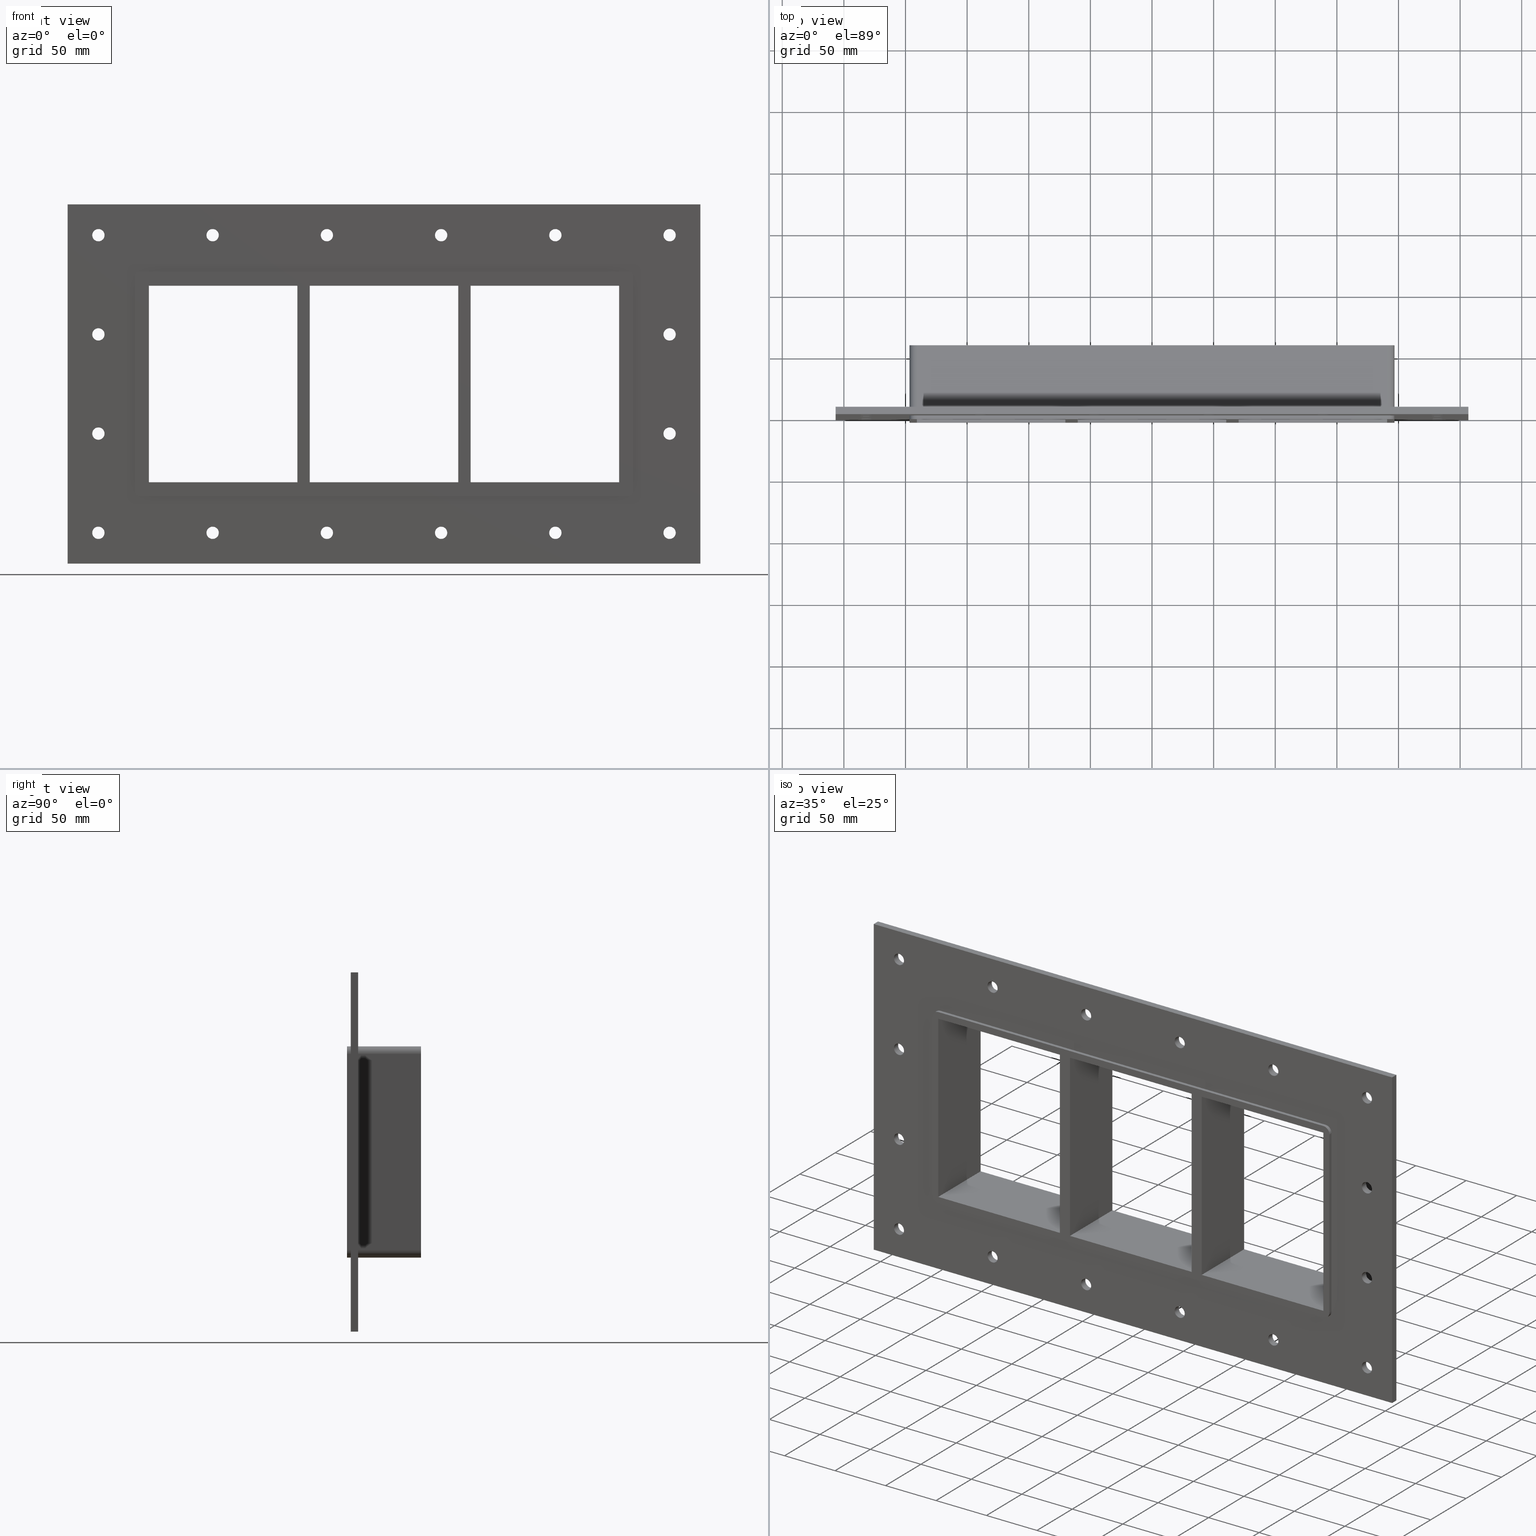
[diagram: canonical four-view strip — front | top / right | iso, engineering-drawing reading convention]
A machine part, canonical four-view strip (front | top / right | iso — engineering-drawing reading convention). The complete STEP part file that produces these views, byte-faithful:
ISO-10303-21;
HEADER;
/****************************************************************
 * Generated by software with PDElib inside                    *
 * PDElib Version v51a, created Wed 11/30/2011                  *
 * ITI Transcendata (http://www.transcendata.com/)              *
 ****************************************************************/
FILE_DESCRIPTION((''),'2;1');
FILE_NAME('N:\\Projects\\Ongoing_Projects\\12403 Transit Designer\\Product-data\\Product Data\\Transit designer Cad Generator\\CreatedFiles\\STEP\\G B EX4X3.stp','2014-12-01T13:18:45',(''),(''),'Autodesk Inventor 2013','Autodesk Inventor 2013','');
FILE_SCHEMA(('AUTOMOTIVE_DESIGN { 1 0 10303 214 1 1 1 1 }'));
ENDSEC;
DATA;
#5=APPLICATION_CONTEXT('automotive design');
#6=APPLICATION_PROTOCOL_DEFINITION('International Standard','automotive_design',2001,#5);
#7=PRODUCT_CONTEXT('',#5,'mechanical');
#8=PRODUCT('G B Ex','G B Ex',$,(#7));
#9=PRODUCT_RELATED_PRODUCT_CATEGORY('part',$,(#8));
#10=PRODUCT_DEFINITION_FORMATION('',$,#8);
#11=PRODUCT_DEFINITION_CONTEXT('part definition',#5,'design');
#12=PRODUCT_DEFINITION('',$,#10,#11);
#18=(NAMED_UNIT(*)PLANE_ANGLE_UNIT()SI_UNIT($,.RADIAN.));
#19=DIMENSIONAL_EXPONENTS(0.0,0.0,0.0,0.0,0.0,0.0,0.0);
#20=PLANE_ANGLE_MEASURE_WITH_UNIT(PLANE_ANGLE_MEASURE(0.0174532925),#18);
#24=(CONVERSION_BASED_UNIT('DEGREE',#20)NAMED_UNIT(#19)PLANE_ANGLE_UNIT());
#28=(NAMED_UNIT(*)SI_UNIT($,.STERADIAN.)SOLID_ANGLE_UNIT());
#32=(LENGTH_UNIT()NAMED_UNIT(*)SI_UNIT(.MILLI.,.METRE.));
#34=UNCERTAINTY_MEASURE_WITH_UNIT(LENGTH_MEASURE(0.01),#32,'DISTANCE_ACCURACY_VALUE','');
#36=(GEOMETRIC_REPRESENTATION_CONTEXT(3)GLOBAL_UNCERTAINTY_ASSIGNED_CONTEXT((#34))GLOBAL_UNIT_ASSIGNED_CONTEXT((#24,#28,#32))REPRESENTATION_CONTEXT('None','None'));
#37=AXIS2_PLACEMENT_3D('',#38,#39,#40);
#38=CARTESIAN_POINT('',(0.0,0.0,0.0));
#39=DIRECTION('',(0.0,0.0,1.0));
#40=DIRECTION('',(1.0,0.0,0.0));
#41=SHAPE_REPRESENTATION('',(#37),#36);
#42=PRODUCT_DEFINITION_SHAPE('','',#12);
#43=SHAPE_DEFINITION_REPRESENTATION(#42,#41);
#49=(NAMED_UNIT(*)PLANE_ANGLE_UNIT()SI_UNIT($,.RADIAN.));
#50=DIMENSIONAL_EXPONENTS(0.0,0.0,0.0,0.0,0.0,0.0,0.0);
#51=PLANE_ANGLE_MEASURE_WITH_UNIT(PLANE_ANGLE_MEASURE(0.0174532925),#49);
#55=(CONVERSION_BASED_UNIT('DEGREE',#51)NAMED_UNIT(#50)PLANE_ANGLE_UNIT());
#59=(NAMED_UNIT(*)SI_UNIT($,.STERADIAN.)SOLID_ANGLE_UNIT());
#63=(LENGTH_UNIT()NAMED_UNIT(*)SI_UNIT(.MILLI.,.METRE.));
#65=UNCERTAINTY_MEASURE_WITH_UNIT(LENGTH_MEASURE(0.000001),#63,'DISTANCE_ACCURACY_VALUE','');
#67=(GEOMETRIC_REPRESENTATION_CONTEXT(3)GLOBAL_UNCERTAINTY_ASSIGNED_CONTEXT((#65))GLOBAL_UNIT_ASSIGNED_CONTEXT((#55,#59,#63))REPRESENTATION_CONTEXT('','3D'));
#68=CARTESIAN_POINT('',(-231.75000000000023,593.51032004506897,-120.75));
#69=DIRECTION('',(0.0,-1.0,0.0));
#70=DIRECTION('',(1.0,0.0,0.0));
#71=AXIS2_PLACEMENT_3D('',#68,#69,#70);
#72=CYLINDRICAL_SURFACE('',#71,5.0);
#73=CARTESIAN_POINT('',(-236.75000000000023,6.000000000000014,-120.75));
#74=VERTEX_POINT('',#73);
#75=CARTESIAN_POINT('',(-231.75000000000023,6.000000000000014,-120.75));
#76=DIRECTION('',(0.0,-1.0,0.0));
#77=DIRECTION('',(1.0,0.0,0.0));
#78=AXIS2_PLACEMENT_3D('',#75,#76,#77);
#79=CIRCLE('',#78,5.0);
#80=EDGE_CURVE('',#74,#74,#79,.T.);
#81=ORIENTED_EDGE('',*,*,#80,.F.);
#82=EDGE_LOOP('',(#81));
#83=FACE_OUTER_BOUND('',#82,.T.);
#84=CARTESIAN_POINT('',(-226.75000000000023,0.0,-120.75));
#85=VERTEX_POINT('',#84);
#86=CARTESIAN_POINT('',(-231.75000000000023,0.0,-120.75));
#87=DIRECTION('',(0.0,1.0,0.0));
#88=DIRECTION('',(1.0,0.0,0.0));
#89=AXIS2_PLACEMENT_3D('',#86,#87,#88);
#90=CIRCLE('',#89,5.0);
#91=EDGE_CURVE('',#85,#85,#90,.T.);
#92=ORIENTED_EDGE('',*,*,#91,.F.);
#93=EDGE_LOOP('',(#92));
#94=FACE_BOUND('',#93,.T.);
#95=ADVANCED_FACE('',(#83,#94),#72,.F.);
#96=CARTESIAN_POINT('',(231.74999999999986,593.51032004506897,-40.249999999999986));
#97=DIRECTION('',(0.0,-1.0,0.0));
#98=DIRECTION('',(1.0,0.0,0.0));
#99=AXIS2_PLACEMENT_3D('',#96,#97,#98);
#100=CYLINDRICAL_SURFACE('',#99,5.0);
#101=CARTESIAN_POINT('',(226.74999999999986,6.000000000000014,-40.249999999999986));
#102=VERTEX_POINT('',#101);
#103=CARTESIAN_POINT('',(231.74999999999986,6.000000000000014,-40.249999999999986));
#104=DIRECTION('',(0.0,-1.0,0.0));
#105=DIRECTION('',(1.0,0.0,0.0));
#106=AXIS2_PLACEMENT_3D('',#103,#104,#105);
#107=CIRCLE('',#106,5.0);
#108=EDGE_CURVE('',#102,#102,#107,.T.);
#109=ORIENTED_EDGE('',*,*,#108,.F.);
#110=EDGE_LOOP('',(#109));
#111=FACE_OUTER_BOUND('',#110,.T.);
#112=CARTESIAN_POINT('',(236.74999999999986,0.0,-40.249999999999986));
#113=VERTEX_POINT('',#112);
#114=CARTESIAN_POINT('',(231.74999999999986,0.0,-40.249999999999986));
#115=DIRECTION('',(0.0,1.0,0.0));
#116=DIRECTION('',(1.0,0.0,0.0));
#117=AXIS2_PLACEMENT_3D('',#114,#115,#116);
#118=CIRCLE('',#117,5.0);
#119=EDGE_CURVE('',#113,#113,#118,.T.);
#120=ORIENTED_EDGE('',*,*,#119,.F.);
#121=EDGE_LOOP('',(#120));
#122=FACE_BOUND('',#121,.T.);
#123=ADVANCED_FACE('',(#111,#122),#100,.F.);
#124=CARTESIAN_POINT('',(-231.75000000000023,593.51032004506897,-40.249999999999986));
#125=DIRECTION('',(0.0,-1.0,0.0));
#126=DIRECTION('',(1.0,0.0,0.0));
#127=AXIS2_PLACEMENT_3D('',#124,#125,#126);
#128=CYLINDRICAL_SURFACE('',#127,5.0);
#129=CARTESIAN_POINT('',(-236.75000000000023,6.000000000000014,-40.249999999999986));
#130=VERTEX_POINT('',#129);
#131=CARTESIAN_POINT('',(-231.75000000000023,6.000000000000014,-40.249999999999986));
#132=DIRECTION('',(0.0,-1.0,0.0));
#133=DIRECTION('',(1.0,0.0,0.0));
#134=AXIS2_PLACEMENT_3D('',#131,#132,#133);
#135=CIRCLE('',#134,5.0);
#136=EDGE_CURVE('',#130,#130,#135,.T.);
#137=ORIENTED_EDGE('',*,*,#136,.F.);
#138=EDGE_LOOP('',(#137));
#139=FACE_OUTER_BOUND('',#138,.T.);
#140=CARTESIAN_POINT('',(-226.75000000000023,0.0,-40.249999999999986));
#141=VERTEX_POINT('',#140);
#142=CARTESIAN_POINT('',(-231.75000000000023,0.0,-40.249999999999986));
#143=DIRECTION('',(0.0,1.0,0.0));
#144=DIRECTION('',(1.0,0.0,0.0));
#145=AXIS2_PLACEMENT_3D('',#142,#143,#144);
#146=CIRCLE('',#145,5.0);
#147=EDGE_CURVE('',#141,#141,#146,.T.);
#148=ORIENTED_EDGE('',*,*,#147,.F.);
#149=EDGE_LOOP('',(#148));
#150=FACE_BOUND('',#149,.T.);
#151=ADVANCED_FACE('',(#139,#150),#128,.F.);
#152=CARTESIAN_POINT('',(231.74999999999986,593.51032004506897,40.250000000000021));
#153=DIRECTION('',(0.0,-1.0,0.0));
#154=DIRECTION('',(1.0,0.0,0.0));
#155=AXIS2_PLACEMENT_3D('',#152,#153,#154);
#156=CYLINDRICAL_SURFACE('',#155,5.0);
#157=CARTESIAN_POINT('',(226.74999999999986,6.000000000000014,40.250000000000021));
#158=VERTEX_POINT('',#157);
#159=CARTESIAN_POINT('',(231.74999999999986,6.000000000000014,40.250000000000021));
#160=DIRECTION('',(0.0,-1.0,0.0));
#161=DIRECTION('',(1.0,0.0,0.0));
#162=AXIS2_PLACEMENT_3D('',#159,#160,#161);
#163=CIRCLE('',#162,5.0);
#164=EDGE_CURVE('',#158,#158,#163,.T.);
#165=ORIENTED_EDGE('',*,*,#164,.F.);
#166=EDGE_LOOP('',(#165));
#167=FACE_OUTER_BOUND('',#166,.T.);
#168=CARTESIAN_POINT('',(236.74999999999986,0.0,40.250000000000021));
#169=VERTEX_POINT('',#168);
#170=CARTESIAN_POINT('',(231.74999999999986,0.0,40.250000000000021));
#171=DIRECTION('',(0.0,1.0,0.0));
#172=DIRECTION('',(1.0,0.0,0.0));
#173=AXIS2_PLACEMENT_3D('',#170,#171,#172);
#174=CIRCLE('',#173,5.0);
#175=EDGE_CURVE('',#169,#169,#174,.T.);
#176=ORIENTED_EDGE('',*,*,#175,.F.);
#177=EDGE_LOOP('',(#176));
#178=FACE_BOUND('',#177,.T.);
#179=ADVANCED_FACE('',(#167,#178),#156,.F.);
#180=CARTESIAN_POINT('',(-231.75000000000023,593.51032004506897,40.250000000000021));
#181=DIRECTION('',(0.0,-1.0,0.0));
#182=DIRECTION('',(1.0,0.0,0.0));
#183=AXIS2_PLACEMENT_3D('',#180,#181,#182);
#184=CYLINDRICAL_SURFACE('',#183,5.0);
#185=CARTESIAN_POINT('',(-236.75000000000023,6.000000000000014,40.250000000000021));
#186=VERTEX_POINT('',#185);
#187=CARTESIAN_POINT('',(-231.75000000000023,6.000000000000014,40.250000000000021));
#188=DIRECTION('',(0.0,-1.0,0.0));
#189=DIRECTION('',(1.0,0.0,0.0));
#190=AXIS2_PLACEMENT_3D('',#187,#188,#189);
#191=CIRCLE('',#190,5.0);
#192=EDGE_CURVE('',#186,#186,#191,.T.);
#193=ORIENTED_EDGE('',*,*,#192,.F.);
#194=EDGE_LOOP('',(#193));
#195=FACE_OUTER_BOUND('',#194,.T.);
#196=CARTESIAN_POINT('',(-226.75000000000023,0.0,40.250000000000021));
#197=VERTEX_POINT('',#196);
#198=CARTESIAN_POINT('',(-231.75000000000023,0.0,40.250000000000021));
#199=DIRECTION('',(0.0,1.0,0.0));
#200=DIRECTION('',(1.0,0.0,0.0));
#201=AXIS2_PLACEMENT_3D('',#198,#199,#200);
#202=CIRCLE('',#201,5.0);
#203=EDGE_CURVE('',#197,#197,#202,.T.);
#204=ORIENTED_EDGE('',*,*,#203,.F.);
#205=EDGE_LOOP('',(#204));
#206=FACE_BOUND('',#205,.T.);
#207=ADVANCED_FACE('',(#195,#206),#184,.F.);
#208=CARTESIAN_POINT('',(-139.05000000000018,593.51032004506897,120.75000000000003));
#209=DIRECTION('',(0.0,-1.0,0.0));
#210=DIRECTION('',(1.0,0.0,0.0));
#211=AXIS2_PLACEMENT_3D('',#208,#209,#210);
#212=CYLINDRICAL_SURFACE('',#211,5.0);
#213=CARTESIAN_POINT('',(-144.05000000000018,6.000000000000014,120.75000000000003));
#214=VERTEX_POINT('',#213);
#215=CARTESIAN_POINT('',(-139.05000000000018,6.000000000000014,120.75000000000003));
#216=DIRECTION('',(0.0,-1.0,0.0));
#217=DIRECTION('',(1.0,0.0,0.0));
#218=AXIS2_PLACEMENT_3D('',#215,#216,#217);
#219=CIRCLE('',#218,5.0);
#220=EDGE_CURVE('',#214,#214,#219,.T.);
#221=ORIENTED_EDGE('',*,*,#220,.F.);
#222=EDGE_LOOP('',(#221));
#223=FACE_OUTER_BOUND('',#222,.T.);
#224=CARTESIAN_POINT('',(-134.05000000000018,0.0,120.75000000000003));
#225=VERTEX_POINT('',#224);
#226=CARTESIAN_POINT('',(-139.05000000000018,0.0,120.75000000000003));
#227=DIRECTION('',(0.0,1.0,0.0));
#228=DIRECTION('',(1.0,0.0,0.0));
#229=AXIS2_PLACEMENT_3D('',#226,#227,#228);
#230=CIRCLE('',#229,5.0);
#231=EDGE_CURVE('',#225,#225,#230,.T.);
#232=ORIENTED_EDGE('',*,*,#231,.F.);
#233=EDGE_LOOP('',(#232));
#234=FACE_BOUND('',#233,.T.);
#235=ADVANCED_FACE('',(#223,#234),#212,.F.);
#236=CARTESIAN_POINT('',(-139.05000000000018,593.51032004506897,-120.75));
#237=DIRECTION('',(0.0,-1.0,0.0));
#238=DIRECTION('',(1.0,0.0,0.0));
#239=AXIS2_PLACEMENT_3D('',#236,#237,#238);
#240=CYLINDRICAL_SURFACE('',#239,5.0);
#241=CARTESIAN_POINT('',(-144.05000000000018,6.000000000000014,-120.75));
#242=VERTEX_POINT('',#241);
#243=CARTESIAN_POINT('',(-139.05000000000018,6.000000000000014,-120.75));
#244=DIRECTION('',(0.0,-1.0,0.0));
#245=DIRECTION('',(1.0,0.0,0.0));
#246=AXIS2_PLACEMENT_3D('',#243,#244,#245);
#247=CIRCLE('',#246,5.0);
#248=EDGE_CURVE('',#242,#242,#247,.T.);
#249=ORIENTED_EDGE('',*,*,#248,.F.);
#250=EDGE_LOOP('',(#249));
#251=FACE_OUTER_BOUND('',#250,.T.);
#252=CARTESIAN_POINT('',(-134.05000000000018,0.0,-120.75));
#253=VERTEX_POINT('',#252);
#254=CARTESIAN_POINT('',(-139.05000000000018,0.0,-120.75));
#255=DIRECTION('',(0.0,1.0,0.0));
#256=DIRECTION('',(1.0,0.0,0.0));
#257=AXIS2_PLACEMENT_3D('',#254,#255,#256);
#258=CIRCLE('',#257,5.0);
#259=EDGE_CURVE('',#253,#253,#258,.T.);
#260=ORIENTED_EDGE('',*,*,#259,.F.);
#261=EDGE_LOOP('',(#260));
#262=FACE_BOUND('',#261,.T.);
#263=ADVANCED_FACE('',(#251,#262),#240,.F.);
#264=CARTESIAN_POINT('',(-46.350000000000136,593.51032004506897,120.75000000000003));
#265=DIRECTION('',(0.0,-1.0,0.0));
#266=DIRECTION('',(1.0,0.0,0.0));
#267=AXIS2_PLACEMENT_3D('',#264,#265,#266);
#268=CYLINDRICAL_SURFACE('',#267,5.0);
#269=CARTESIAN_POINT('',(-51.350000000000136,6.000000000000014,120.75000000000003));
#270=VERTEX_POINT('',#269);
#271=CARTESIAN_POINT('',(-46.350000000000136,6.000000000000014,120.75000000000003));
#272=DIRECTION('',(0.0,-1.0,0.0));
#273=DIRECTION('',(1.0,0.0,0.0));
#274=AXIS2_PLACEMENT_3D('',#271,#272,#273);
#275=CIRCLE('',#274,5.0);
#276=EDGE_CURVE('',#270,#270,#275,.T.);
#277=ORIENTED_EDGE('',*,*,#276,.F.);
#278=EDGE_LOOP('',(#277));
#279=FACE_OUTER_BOUND('',#278,.T.);
#280=CARTESIAN_POINT('',(-41.350000000000136,0.0,120.75000000000003));
#281=VERTEX_POINT('',#280);
#282=CARTESIAN_POINT('',(-46.350000000000136,0.0,120.75000000000003));
#283=DIRECTION('',(0.0,1.0,0.0));
#284=DIRECTION('',(1.0,0.0,0.0));
#285=AXIS2_PLACEMENT_3D('',#282,#283,#284);
#286=CIRCLE('',#285,5.0);
#287=EDGE_CURVE('',#281,#281,#286,.T.);
#288=ORIENTED_EDGE('',*,*,#287,.F.);
#289=EDGE_LOOP('',(#288));
#290=FACE_BOUND('',#289,.T.);
#291=ADVANCED_FACE('',(#279,#290),#268,.F.);
#292=CARTESIAN_POINT('',(-46.350000000000136,593.51032004506897,-120.75));
#293=DIRECTION('',(0.0,-1.0,0.0));
#294=DIRECTION('',(1.0,0.0,0.0));
#295=AXIS2_PLACEMENT_3D('',#292,#293,#294);
#296=CYLINDRICAL_SURFACE('',#295,5.0);
#297=CARTESIAN_POINT('',(-51.350000000000136,6.000000000000014,-120.75));
#298=VERTEX_POINT('',#297);
#299=CARTESIAN_POINT('',(-46.350000000000136,6.000000000000014,-120.75));
#300=DIRECTION('',(0.0,-1.0,0.0));
#301=DIRECTION('',(1.0,0.0,0.0));
#302=AXIS2_PLACEMENT_3D('',#299,#300,#301);
#303=CIRCLE('',#302,5.0);
#304=EDGE_CURVE('',#298,#298,#303,.T.);
#305=ORIENTED_EDGE('',*,*,#304,.F.);
#306=EDGE_LOOP('',(#305));
#307=FACE_OUTER_BOUND('',#306,.T.);
#308=CARTESIAN_POINT('',(-41.350000000000136,0.0,-120.75));
#309=VERTEX_POINT('',#308);
#310=CARTESIAN_POINT('',(-46.350000000000136,0.0,-120.75));
#311=DIRECTION('',(0.0,1.0,0.0));
#312=DIRECTION('',(1.0,0.0,0.0));
#313=AXIS2_PLACEMENT_3D('',#310,#311,#312);
#314=CIRCLE('',#313,5.0);
#315=EDGE_CURVE('',#309,#309,#314,.T.);
#316=ORIENTED_EDGE('',*,*,#315,.F.);
#317=EDGE_LOOP('',(#316));
#318=FACE_BOUND('',#317,.T.);
#319=ADVANCED_FACE('',(#307,#318),#296,.F.);
#320=CARTESIAN_POINT('',(46.349999999999838,593.51032004506897,120.75000000000003));
#321=DIRECTION('',(0.0,-1.0,0.0));
#322=DIRECTION('',(1.0,0.0,0.0));
#323=AXIS2_PLACEMENT_3D('',#320,#321,#322);
#324=CYLINDRICAL_SURFACE('',#323,5.0);
#325=CARTESIAN_POINT('',(41.349999999999838,6.000000000000014,120.75000000000003));
#326=VERTEX_POINT('',#325);
#327=CARTESIAN_POINT('',(46.349999999999838,6.000000000000014,120.75000000000003));
#328=DIRECTION('',(0.0,-1.0,0.0));
#329=DIRECTION('',(1.0,0.0,0.0));
#330=AXIS2_PLACEMENT_3D('',#327,#328,#329);
#331=CIRCLE('',#330,5.0);
#332=EDGE_CURVE('',#326,#326,#331,.T.);
#333=ORIENTED_EDGE('',*,*,#332,.F.);
#334=EDGE_LOOP('',(#333));
#335=FACE_OUTER_BOUND('',#334,.T.);
#336=CARTESIAN_POINT('',(51.349999999999838,0.0,120.75000000000003));
#337=VERTEX_POINT('',#336);
#338=CARTESIAN_POINT('',(46.349999999999838,0.0,120.75000000000003));
#339=DIRECTION('',(0.0,1.0,0.0));
#340=DIRECTION('',(1.0,0.0,0.0));
#341=AXIS2_PLACEMENT_3D('',#338,#339,#340);
#342=CIRCLE('',#341,5.0);
#343=EDGE_CURVE('',#337,#337,#342,.T.);
#344=ORIENTED_EDGE('',*,*,#343,.F.);
#345=EDGE_LOOP('',(#344));
#346=FACE_BOUND('',#345,.T.);
#347=ADVANCED_FACE('',(#335,#346),#324,.F.);
#348=CARTESIAN_POINT('',(46.349999999999838,593.51032004506897,-120.75));
#349=DIRECTION('',(0.0,-1.0,0.0));
#350=DIRECTION('',(1.0,0.0,0.0));
#351=AXIS2_PLACEMENT_3D('',#348,#349,#350);
#352=CYLINDRICAL_SURFACE('',#351,5.0);
#353=CARTESIAN_POINT('',(41.349999999999838,6.000000000000014,-120.75));
#354=VERTEX_POINT('',#353);
#355=CARTESIAN_POINT('',(46.349999999999838,6.000000000000014,-120.75));
#356=DIRECTION('',(0.0,-1.0,0.0));
#357=DIRECTION('',(1.0,0.0,0.0));
#358=AXIS2_PLACEMENT_3D('',#355,#356,#357);
#359=CIRCLE('',#358,5.0);
#360=EDGE_CURVE('',#354,#354,#359,.T.);
#361=ORIENTED_EDGE('',*,*,#360,.F.);
#362=EDGE_LOOP('',(#361));
#363=FACE_OUTER_BOUND('',#362,.T.);
#364=CARTESIAN_POINT('',(51.349999999999838,0.0,-120.75));
#365=VERTEX_POINT('',#364);
#366=CARTESIAN_POINT('',(46.349999999999838,0.0,-120.75));
#367=DIRECTION('',(0.0,1.0,0.0));
#368=DIRECTION('',(1.0,0.0,0.0));
#369=AXIS2_PLACEMENT_3D('',#366,#367,#368);
#370=CIRCLE('',#369,5.0);
#371=EDGE_CURVE('',#365,#365,#370,.T.);
#372=ORIENTED_EDGE('',*,*,#371,.F.);
#373=EDGE_LOOP('',(#372));
#374=FACE_BOUND('',#373,.T.);
#375=ADVANCED_FACE('',(#363,#374),#352,.F.);
#376=CARTESIAN_POINT('',(139.04999999999984,593.51032004506897,120.75000000000003));
#377=DIRECTION('',(0.0,-1.0,0.0));
#378=DIRECTION('',(1.0,0.0,0.0));
#379=AXIS2_PLACEMENT_3D('',#376,#377,#378);
#380=CYLINDRICAL_SURFACE('',#379,5.0);
#381=CARTESIAN_POINT('',(134.04999999999984,6.000000000000014,120.75000000000003));
#382=VERTEX_POINT('',#381);
#383=CARTESIAN_POINT('',(139.04999999999984,6.000000000000014,120.75000000000003));
#384=DIRECTION('',(0.0,-1.0,0.0));
#385=DIRECTION('',(1.0,0.0,0.0));
#386=AXIS2_PLACEMENT_3D('',#383,#384,#385);
#387=CIRCLE('',#386,5.0);
#388=EDGE_CURVE('',#382,#382,#387,.T.);
#389=ORIENTED_EDGE('',*,*,#388,.F.);
#390=EDGE_LOOP('',(#389));
#391=FACE_OUTER_BOUND('',#390,.T.);
#392=CARTESIAN_POINT('',(144.04999999999984,0.0,120.75000000000003));
#393=VERTEX_POINT('',#392);
#394=CARTESIAN_POINT('',(139.04999999999984,0.0,120.75000000000003));
#395=DIRECTION('',(0.0,1.0,0.0));
#396=DIRECTION('',(1.0,0.0,0.0));
#397=AXIS2_PLACEMENT_3D('',#394,#395,#396);
#398=CIRCLE('',#397,5.0);
#399=EDGE_CURVE('',#393,#393,#398,.T.);
#400=ORIENTED_EDGE('',*,*,#399,.F.);
#401=EDGE_LOOP('',(#400));
#402=FACE_BOUND('',#401,.T.);
#403=ADVANCED_FACE('',(#391,#402),#380,.F.);
#404=CARTESIAN_POINT('',(139.04999999999984,593.51032004506897,-120.75));
#405=DIRECTION('',(0.0,-1.0,0.0));
#406=DIRECTION('',(1.0,0.0,0.0));
#407=AXIS2_PLACEMENT_3D('',#404,#405,#406);
#408=CYLINDRICAL_SURFACE('',#407,5.0);
#409=CARTESIAN_POINT('',(134.04999999999984,6.000000000000014,-120.75));
#410=VERTEX_POINT('',#409);
#411=CARTESIAN_POINT('',(139.04999999999984,6.000000000000014,-120.75));
#412=DIRECTION('',(0.0,-1.0,0.0));
#413=DIRECTION('',(1.0,0.0,0.0));
#414=AXIS2_PLACEMENT_3D('',#411,#412,#413);
#415=CIRCLE('',#414,5.0);
#416=EDGE_CURVE('',#410,#410,#415,.T.);
#417=ORIENTED_EDGE('',*,*,#416,.F.);
#418=EDGE_LOOP('',(#417));
#419=FACE_OUTER_BOUND('',#418,.T.);
#420=CARTESIAN_POINT('',(144.04999999999984,0.0,-120.75));
#421=VERTEX_POINT('',#420);
#422=CARTESIAN_POINT('',(139.04999999999984,0.0,-120.75));
#423=DIRECTION('',(0.0,1.0,0.0));
#424=DIRECTION('',(1.0,0.0,0.0));
#425=AXIS2_PLACEMENT_3D('',#422,#423,#424);
#426=CIRCLE('',#425,5.0);
#427=EDGE_CURVE('',#421,#421,#426,.T.);
#428=ORIENTED_EDGE('',*,*,#427,.F.);
#429=EDGE_LOOP('',(#428));
#430=FACE_BOUND('',#429,.T.);
#431=ADVANCED_FACE('',(#419,#430),#408,.F.);
#432=CARTESIAN_POINT('',(231.74999999999986,593.51032004506897,-120.75));
#433=DIRECTION('',(0.0,-1.0,0.0));
#434=DIRECTION('',(1.0,0.0,0.0));
#435=AXIS2_PLACEMENT_3D('',#432,#433,#434);
#436=CYLINDRICAL_SURFACE('',#435,5.0);
#437=CARTESIAN_POINT('',(226.74999999999986,6.000000000000014,-120.75));
#438=VERTEX_POINT('',#437);
#439=CARTESIAN_POINT('',(231.74999999999986,6.000000000000014,-120.75));
#440=DIRECTION('',(0.0,-1.0,0.0));
#441=DIRECTION('',(1.0,0.0,0.0));
#442=AXIS2_PLACEMENT_3D('',#439,#440,#441);
#443=CIRCLE('',#442,5.0);
#444=EDGE_CURVE('',#438,#438,#443,.T.);
#445=ORIENTED_EDGE('',*,*,#444,.F.);
#446=EDGE_LOOP('',(#445));
#447=FACE_OUTER_BOUND('',#446,.T.);
#448=CARTESIAN_POINT('',(236.74999999999986,0.0,-120.75));
#449=VERTEX_POINT('',#448);
#450=CARTESIAN_POINT('',(231.74999999999986,0.0,-120.75));
#451=DIRECTION('',(0.0,1.0,0.0));
#452=DIRECTION('',(1.0,0.0,0.0));
#453=AXIS2_PLACEMENT_3D('',#450,#451,#452);
#454=CIRCLE('',#453,5.0);
#455=EDGE_CURVE('',#449,#449,#454,.T.);
#456=ORIENTED_EDGE('',*,*,#455,.F.);
#457=EDGE_LOOP('',(#456));
#458=FACE_BOUND('',#457,.T.);
#459=ADVANCED_FACE('',(#447,#458),#436,.F.);
#460=CARTESIAN_POINT('',(-231.75000000000023,593.51032004506897,120.75000000000003));
#461=DIRECTION('',(0.0,-1.0,0.0));
#462=DIRECTION('',(1.0,0.0,0.0));
#463=AXIS2_PLACEMENT_3D('',#460,#461,#462);
#464=CYLINDRICAL_SURFACE('',#463,5.0);
#465=CARTESIAN_POINT('',(-236.75000000000023,6.000000000000014,120.75000000000003));
#466=VERTEX_POINT('',#465);
#467=CARTESIAN_POINT('',(-231.75000000000023,6.000000000000014,120.75000000000003));
#468=DIRECTION('',(0.0,-1.0,0.0));
#469=DIRECTION('',(1.0,0.0,0.0));
#470=AXIS2_PLACEMENT_3D('',#467,#468,#469);
#471=CIRCLE('',#470,5.0);
#472=EDGE_CURVE('',#466,#466,#471,.T.);
#473=ORIENTED_EDGE('',*,*,#472,.F.);
#474=EDGE_LOOP('',(#473));
#475=FACE_OUTER_BOUND('',#474,.T.);
#476=CARTESIAN_POINT('',(-226.75000000000023,0.0,120.75000000000003));
#477=VERTEX_POINT('',#476);
#478=CARTESIAN_POINT('',(-231.75000000000023,0.0,120.75000000000003));
#479=DIRECTION('',(0.0,1.0,0.0));
#480=DIRECTION('',(1.0,0.0,0.0));
#481=AXIS2_PLACEMENT_3D('',#478,#479,#480);
#482=CIRCLE('',#481,5.0);
#483=EDGE_CURVE('',#477,#477,#482,.T.);
#484=ORIENTED_EDGE('',*,*,#483,.F.);
#485=EDGE_LOOP('',(#484));
#486=FACE_BOUND('',#485,.T.);
#487=ADVANCED_FACE('',(#475,#486),#464,.F.);
#488=CARTESIAN_POINT('',(231.74999999999986,593.51032004506897,120.75000000000003));
#489=DIRECTION('',(0.0,-1.0,0.0));
#490=DIRECTION('',(1.0,0.0,0.0));
#491=AXIS2_PLACEMENT_3D('',#488,#489,#490);
#492=CYLINDRICAL_SURFACE('',#491,5.0);
#493=CARTESIAN_POINT('',(226.74999999999986,6.000000000000014,120.75000000000003));
#494=VERTEX_POINT('',#493);
#495=CARTESIAN_POINT('',(231.74999999999986,6.000000000000014,120.75000000000003));
#496=DIRECTION('',(0.0,-1.0,0.0));
#497=DIRECTION('',(1.0,0.0,0.0));
#498=AXIS2_PLACEMENT_3D('',#495,#496,#497);
#499=CIRCLE('',#498,5.0);
#500=EDGE_CURVE('',#494,#494,#499,.T.);
#501=ORIENTED_EDGE('',*,*,#500,.F.);
#502=EDGE_LOOP('',(#501));
#503=FACE_OUTER_BOUND('',#502,.T.);
#504=CARTESIAN_POINT('',(236.74999999999986,0.0,120.75000000000003));
#505=VERTEX_POINT('',#504);
#506=CARTESIAN_POINT('',(231.74999999999986,0.0,120.75000000000003));
#507=DIRECTION('',(0.0,1.0,0.0));
#508=DIRECTION('',(1.0,0.0,0.0));
#509=AXIS2_PLACEMENT_3D('',#506,#507,#508);
#510=CIRCLE('',#509,5.0);
#511=EDGE_CURVE('',#505,#505,#510,.T.);
#512=ORIENTED_EDGE('',*,*,#511,.F.);
#513=EDGE_LOOP('',(#512));
#514=FACE_BOUND('',#513,.T.);
#515=ADVANCED_FACE('',(#503,#514),#492,.F.);
#516=CARTESIAN_POINT('',(60.2499999999986,-3.0,-79.750000000000014));
#517=DIRECTION('',(-1.0,0.0,0.0));
#518=DIRECTION('',(0.0,0.0,1.0));
#519=AXIS2_PLACEMENT_3D('',#516,#517,#518);
#520=PLANE('',#519);
#521=CARTESIAN_POINT('',(60.2499999999986,-3.0,-79.750000000000014));
#522=VERTEX_POINT('',#521);
#523=CARTESIAN_POINT('',(60.249999999998565,-3.0,79.750000000000014));
#524=VERTEX_POINT('',#523);
#525=CARTESIAN_POINT('',(60.2499999999986,-3.0,-79.750000000000014));
#526=DIRECTION('',(0.0,0.0,1.0));
#527=VECTOR('',#526,159.50000000000003);
#528=LINE('',#525,#527);
#529=EDGE_CURVE('',#522,#524,#528,.T.);
#530=ORIENTED_EDGE('',*,*,#529,.T.);
#531=CARTESIAN_POINT('',(60.249999999998565,57.0,79.750000000000014));
#532=VERTEX_POINT('',#531);
#533=CARTESIAN_POINT('',(60.249999999998565,57.000000000000007,79.750000000000014));
#534=DIRECTION('',(0.0,-1.0,0.0));
#535=VECTOR('',#534,60.000000000000007);
#536=LINE('',#533,#535);
#537=EDGE_CURVE('',#532,#524,#536,.T.);
#538=ORIENTED_EDGE('',*,*,#537,.F.);
#539=CARTESIAN_POINT('',(60.2499999999986,57.0,-79.750000000000014));
#540=VERTEX_POINT('',#539);
#541=CARTESIAN_POINT('',(60.2499999999986,57.0,-79.750000000000014));
#542=DIRECTION('',(0.0,0.0,1.0));
#543=VECTOR('',#542,159.50000000000003);
#544=LINE('',#541,#543);
#545=EDGE_CURVE('',#540,#532,#544,.T.);
#546=ORIENTED_EDGE('',*,*,#545,.F.);
#547=CARTESIAN_POINT('',(60.2499999999986,-3.0,-79.750000000000014));
#548=DIRECTION('',(0.0,1.0,0.0));
#549=VECTOR('',#548,60.000000000000007);
#550=LINE('',#547,#549);
#551=EDGE_CURVE('',#522,#540,#550,.T.);
#552=ORIENTED_EDGE('',*,*,#551,.F.);
#553=EDGE_LOOP('',(#530,#538,#546,#552));
#554=FACE_OUTER_BOUND('',#553,.T.);
#555=ADVANCED_FACE('',(#554),#520,.T.);
#556=CARTESIAN_POINT('',(70.250000000003638,-3.0,79.750000000000014));
#557=DIRECTION('',(1.0,0.0,0.0));
#558=DIRECTION('',(0.0,0.0,-1.0));
#559=AXIS2_PLACEMENT_3D('',#556,#557,#558);
#560=PLANE('',#559);
#561=CARTESIAN_POINT('',(70.250000000003638,-3.0,79.750000000000014));
#562=VERTEX_POINT('',#561);
#563=CARTESIAN_POINT('',(70.250000000003638,-3.0,-79.749999999981796));
#564=VERTEX_POINT('',#563);
#565=CARTESIAN_POINT('',(70.250000000003638,-3.0,79.750000000000014));
#566=DIRECTION('',(0.0,0.0,-1.0));
#567=VECTOR('',#566,159.49999999998181);
#568=LINE('',#565,#567);
#569=EDGE_CURVE('',#562,#564,#568,.T.);
#570=ORIENTED_EDGE('',*,*,#569,.T.);
#571=CARTESIAN_POINT('',(70.250000000003638,57.0,-79.749999999981782));
#572=VERTEX_POINT('',#571);
#573=CARTESIAN_POINT('',(70.250000000003638,57.000000000000007,-79.750000000000014));
#574=DIRECTION('',(0.0,-1.0,0.0));
#575=VECTOR('',#574,60.000000000000007);
#576=LINE('',#573,#575);
#577=EDGE_CURVE('',#572,#564,#576,.T.);
#578=ORIENTED_EDGE('',*,*,#577,.F.);
#579=CARTESIAN_POINT('',(70.250000000003638,57.0,79.750000000000014));
#580=VERTEX_POINT('',#579);
#581=CARTESIAN_POINT('',(70.250000000003638,57.0,79.750000000000014));
#582=DIRECTION('',(0.0,0.0,-1.0));
#583=VECTOR('',#582,159.49999999998181);
#584=LINE('',#581,#583);
#585=EDGE_CURVE('',#580,#572,#584,.T.);
#586=ORIENTED_EDGE('',*,*,#585,.F.);
#587=CARTESIAN_POINT('',(70.250000000003638,-3.0,79.750000000000014));
#588=DIRECTION('',(0.0,1.0,0.0));
#589=VECTOR('',#588,60.000000000000007);
#590=LINE('',#587,#589);
#591=EDGE_CURVE('',#562,#580,#590,.T.);
#592=ORIENTED_EDGE('',*,*,#591,.F.);
#593=EDGE_LOOP('',(#570,#578,#586,#592));
#594=FACE_OUTER_BOUND('',#593,.T.);
#595=ADVANCED_FACE('',(#594),#560,.T.);
#596=CARTESIAN_POINT('',(190.75000000000011,0.0,-79.750000000000014));
#597=DIRECTION('',(0.0,0.0,-1.0));
#598=DIRECTION('',(-1.0,0.0,0.0));
#599=AXIS2_PLACEMENT_3D('',#596,#597,#598);
#600=PLANE('',#599);
#601=ORIENTED_EDGE('',*,*,#551,.T.);
#602=CARTESIAN_POINT('',(-60.249999999996362,57.0,-79.749999999981782));
#603=VERTEX_POINT('',#602);
#604=CARTESIAN_POINT('',(-60.249999999996362,57.0,-79.750000000000014));
#605=DIRECTION('',(1.0,0.0,0.0));
#606=VECTOR('',#605,120.49999999999497);
#607=LINE('',#604,#606);
#608=EDGE_CURVE('',#603,#540,#607,.T.);
#609=ORIENTED_EDGE('',*,*,#608,.F.);
#610=CARTESIAN_POINT('',(-60.249999999996362,-3.0,-79.749999999981796));
#611=VERTEX_POINT('',#610);
#612=CARTESIAN_POINT('',(-60.249999999996362,57.000000000000007,-79.750000000000014));
#613=DIRECTION('',(0.0,-1.0,0.0));
#614=VECTOR('',#613,60.000000000000007);
#615=LINE('',#612,#614);
#616=EDGE_CURVE('',#603,#611,#615,.T.);
#617=ORIENTED_EDGE('',*,*,#616,.T.);
#618=CARTESIAN_POINT('',(60.249999999998607,-3.0,-79.750000000000014));
#619=DIRECTION('',(-1.0,0.0,0.0));
#620=VECTOR('',#619,120.49999999999497);
#621=LINE('',#618,#620);
#622=EDGE_CURVE('',#522,#611,#621,.T.);
#623=ORIENTED_EDGE('',*,*,#622,.F.);
#624=EDGE_LOOP('',(#601,#609,#617,#623));
#625=FACE_OUTER_BOUND('',#624,.T.);
#626=ADVANCED_FACE('',(#625),#600,.F.);
#627=CARTESIAN_POINT('',(190.75000000000011,0.0,-79.750000000000014));
#628=DIRECTION('',(0.0,0.0,-1.0));
#629=DIRECTION('',(-1.0,0.0,0.0));
#630=AXIS2_PLACEMENT_3D('',#627,#628,#629);
#631=PLANE('',#630);
#632=ORIENTED_EDGE('',*,*,#577,.T.);
#633=CARTESIAN_POINT('',(190.75000000000011,-3.0,-79.750000000000014));
#634=VERTEX_POINT('',#633);
#635=CARTESIAN_POINT('',(190.75000000000011,-3.0,-79.750000000000014));
#636=DIRECTION('',(-1.0,0.0,0.0));
#637=VECTOR('',#636,120.49999999999646);
#638=LINE('',#635,#637);
#639=EDGE_CURVE('',#634,#564,#638,.T.);
#640=ORIENTED_EDGE('',*,*,#639,.F.);
#641=CARTESIAN_POINT('',(190.75000000000011,57.0,-79.750000000000014));
#642=VERTEX_POINT('',#641);
#643=CARTESIAN_POINT('',(190.75000000000011,56.999999999999993,-79.750000000000014));
#644=DIRECTION('',(0.0,-1.0,0.0));
#645=VECTOR('',#644,59.999999999999993);
#646=LINE('',#643,#645);
#647=EDGE_CURVE('',#642,#634,#646,.T.);
#648=ORIENTED_EDGE('',*,*,#647,.F.);
#649=CARTESIAN_POINT('',(70.250000000003652,57.0,-79.750000000000014));
#650=DIRECTION('',(1.0,0.0,0.0));
#651=VECTOR('',#650,120.49999999999646);
#652=LINE('',#649,#651);
#653=EDGE_CURVE('',#572,#642,#652,.T.);
#654=ORIENTED_EDGE('',*,*,#653,.F.);
#655=EDGE_LOOP('',(#632,#640,#648,#654));
#656=FACE_OUTER_BOUND('',#655,.T.);
#657=ADVANCED_FACE('',(#656),#631,.F.);
#658=CARTESIAN_POINT('',(-190.75000000000006,0.0,79.750000000000014));
#659=DIRECTION('',(0.0,0.0,1.0));
#660=DIRECTION('',(1.0,0.0,0.0));
#661=AXIS2_PLACEMENT_3D('',#658,#659,#660);
#662=PLANE('',#661);
#663=ORIENTED_EDGE('',*,*,#591,.T.);
#664=CARTESIAN_POINT('',(190.75000000000011,57.0,79.750000000000014));
#665=VERTEX_POINT('',#664);
#666=CARTESIAN_POINT('',(190.75000000000009,57.0,79.750000000000014));
#667=DIRECTION('',(-1.0,0.0,0.0));
#668=VECTOR('',#667,120.49999999999642);
#669=LINE('',#666,#668);
#670=EDGE_CURVE('',#665,#580,#669,.T.);
#671=ORIENTED_EDGE('',*,*,#670,.F.);
#672=CARTESIAN_POINT('',(190.75000000000011,-3.0,79.750000000000014));
#673=VERTEX_POINT('',#672);
#674=CARTESIAN_POINT('',(190.75000000000011,-3.0,79.750000000000014));
#675=DIRECTION('',(0.0,1.0,0.0));
#676=VECTOR('',#675,60.0);
#677=LINE('',#674,#676);
#678=EDGE_CURVE('',#673,#665,#677,.T.);
#679=ORIENTED_EDGE('',*,*,#678,.F.);
#680=CARTESIAN_POINT('',(70.250000000003666,-3.0,79.750000000000014));
#681=DIRECTION('',(1.0,0.0,0.0));
#682=VECTOR('',#681,120.49999999999642);
#683=LINE('',#680,#682);
#684=EDGE_CURVE('',#562,#673,#683,.T.);
#685=ORIENTED_EDGE('',*,*,#684,.F.);
#686=EDGE_LOOP('',(#663,#671,#679,#685));
#687=FACE_OUTER_BOUND('',#686,.T.);
#688=ADVANCED_FACE('',(#687),#662,.F.);
#689=CARTESIAN_POINT('',(-190.75000000000006,0.0,79.750000000000014));
#690=DIRECTION('',(0.0,0.0,1.0));
#691=DIRECTION('',(1.0,0.0,0.0));
#692=AXIS2_PLACEMENT_3D('',#689,#690,#691);
#693=PLANE('',#692);
#694=ORIENTED_EDGE('',*,*,#537,.T.);
#695=CARTESIAN_POINT('',(-60.249999999996362,-3.0,79.750000000000014));
#696=VERTEX_POINT('',#695);
#697=CARTESIAN_POINT('',(-60.249999999996362,-3.0,79.750000000000014));
#698=DIRECTION('',(1.0,0.0,0.0));
#699=VECTOR('',#698,120.49999999999494);
#700=LINE('',#697,#699);
#701=EDGE_CURVE('',#696,#524,#700,.T.);
#702=ORIENTED_EDGE('',*,*,#701,.F.);
#703=CARTESIAN_POINT('',(-60.249999999996362,57.0,79.750000000000014));
#704=VERTEX_POINT('',#703);
#705=CARTESIAN_POINT('',(-60.249999999996362,-3.0,79.750000000000014));
#706=DIRECTION('',(0.0,1.0,0.0));
#707=VECTOR('',#706,60.000000000000007);
#708=LINE('',#705,#707);
#709=EDGE_CURVE('',#696,#704,#708,.T.);
#710=ORIENTED_EDGE('',*,*,#709,.T.);
#711=CARTESIAN_POINT('',(60.249999999998579,57.0,79.750000000000014));
#712=DIRECTION('',(-1.0,0.0,0.0));
#713=VECTOR('',#712,120.49999999999494);
#714=LINE('',#711,#713);
#715=EDGE_CURVE('',#532,#704,#714,.T.);
#716=ORIENTED_EDGE('',*,*,#715,.F.);
#717=EDGE_LOOP('',(#694,#702,#710,#716));
#718=FACE_OUTER_BOUND('',#717,.T.);
#719=ADVANCED_FACE('',(#718),#693,.F.);
#720=CARTESIAN_POINT('',(-70.250000000001407,-3.0,-79.750000000000014));
#721=DIRECTION('',(-1.0,0.0,0.0));
#722=DIRECTION('',(0.0,0.0,1.0));
#723=AXIS2_PLACEMENT_3D('',#720,#721,#722);
#724=PLANE('',#723);
#725=CARTESIAN_POINT('',(-70.250000000001407,-3.0,-79.750000000000014));
#726=VERTEX_POINT('',#725);
#727=CARTESIAN_POINT('',(-70.25000000000145,-3.0,79.750000000000014));
#728=VERTEX_POINT('',#727);
#729=CARTESIAN_POINT('',(-70.250000000001407,-3.0,-79.750000000000014));
#730=DIRECTION('',(0.0,0.0,1.0));
#731=VECTOR('',#730,159.50000000000003);
#732=LINE('',#729,#731);
#733=EDGE_CURVE('',#726,#728,#732,.T.);
#734=ORIENTED_EDGE('',*,*,#733,.T.);
#735=CARTESIAN_POINT('',(-70.25000000000145,57.0,79.750000000000014));
#736=VERTEX_POINT('',#735);
#737=CARTESIAN_POINT('',(-70.25000000000145,57.000000000000007,79.750000000000014));
#738=DIRECTION('',(0.0,-1.0,0.0));
#739=VECTOR('',#738,60.000000000000007);
#740=LINE('',#737,#739);
#741=EDGE_CURVE('',#736,#728,#740,.T.);
#742=ORIENTED_EDGE('',*,*,#741,.F.);
#743=CARTESIAN_POINT('',(-70.250000000001407,57.0,-79.750000000000014));
#744=VERTEX_POINT('',#743);
#745=CARTESIAN_POINT('',(-70.250000000001407,57.0,-79.750000000000014));
#746=DIRECTION('',(0.0,0.0,1.0));
#747=VECTOR('',#746,159.50000000000003);
#748=LINE('',#745,#747);
#749=EDGE_CURVE('',#744,#736,#748,.T.);
#750=ORIENTED_EDGE('',*,*,#749,.F.);
#751=CARTESIAN_POINT('',(-70.250000000001407,-3.0,-79.750000000000014));
#752=DIRECTION('',(0.0,1.0,0.0));
#753=VECTOR('',#752,60.000000000000007);
#754=LINE('',#751,#753);
#755=EDGE_CURVE('',#726,#744,#754,.T.);
#756=ORIENTED_EDGE('',*,*,#755,.F.);
#757=EDGE_LOOP('',(#734,#742,#750,#756));
#758=FACE_OUTER_BOUND('',#757,.T.);
#759=ADVANCED_FACE('',(#758),#724,.T.);
#760=CARTESIAN_POINT('',(-60.249999999996362,-3.0,79.750000000000014));
#761=DIRECTION('',(1.0,0.0,0.0));
#762=DIRECTION('',(0.0,0.0,-1.0));
#763=AXIS2_PLACEMENT_3D('',#760,#761,#762);
#764=PLANE('',#763);
#765=CARTESIAN_POINT('',(-60.249999999996362,-3.0,79.750000000000014));
#766=DIRECTION('',(0.0,0.0,-1.0));
#767=VECTOR('',#766,159.49999999998181);
#768=LINE('',#765,#767);
#769=EDGE_CURVE('',#696,#611,#768,.T.);
#770=ORIENTED_EDGE('',*,*,#769,.T.);
#771=ORIENTED_EDGE('',*,*,#616,.F.);
#772=CARTESIAN_POINT('',(-60.249999999996362,57.0,79.750000000000014));
#773=DIRECTION('',(0.0,0.0,-1.0));
#774=VECTOR('',#773,159.49999999998181);
#775=LINE('',#772,#774);
#776=EDGE_CURVE('',#704,#603,#775,.T.);
#777=ORIENTED_EDGE('',*,*,#776,.F.);
#778=ORIENTED_EDGE('',*,*,#709,.F.);
#779=EDGE_LOOP('',(#770,#771,#777,#778));
#780=FACE_OUTER_BOUND('',#779,.T.);
#781=ADVANCED_FACE('',(#780),#764,.T.);
#782=CARTESIAN_POINT('',(190.75000000000011,0.0,-79.750000000000014));
#783=DIRECTION('',(0.0,0.0,-1.0));
#784=DIRECTION('',(-1.0,0.0,0.0));
#785=AXIS2_PLACEMENT_3D('',#782,#783,#784);
#786=PLANE('',#785);
#787=ORIENTED_EDGE('',*,*,#755,.T.);
#788=CARTESIAN_POINT('',(-190.75000000000011,57.0,-79.750000000000014));
#789=VERTEX_POINT('',#788);
#790=CARTESIAN_POINT('',(-190.75000000000011,57.0,-79.750000000000014));
#791=DIRECTION('',(1.0,0.0,0.0));
#792=VECTOR('',#791,120.49999999999872);
#793=LINE('',#790,#792);
#794=EDGE_CURVE('',#789,#744,#793,.T.);
#795=ORIENTED_EDGE('',*,*,#794,.F.);
#796=CARTESIAN_POINT('',(-190.75000000000011,-3.0,-79.750000000000014));
#797=VERTEX_POINT('',#796);
#798=CARTESIAN_POINT('',(-190.75000000000006,-3.0,-79.750000000000014));
#799=DIRECTION('',(0.0,1.0,0.0));
#800=VECTOR('',#799,60.0);
#801=LINE('',#798,#800);
#802=EDGE_CURVE('',#797,#789,#801,.T.);
#803=ORIENTED_EDGE('',*,*,#802,.F.);
#804=CARTESIAN_POINT('',(-70.250000000001393,-3.0,-79.750000000000014));
#805=DIRECTION('',(-1.0,0.0,0.0));
#806=VECTOR('',#805,120.49999999999872);
#807=LINE('',#804,#806);
#808=EDGE_CURVE('',#726,#797,#807,.T.);
#809=ORIENTED_EDGE('',*,*,#808,.F.);
#810=EDGE_LOOP('',(#787,#795,#803,#809));
#811=FACE_OUTER_BOUND('',#810,.T.);
#812=ADVANCED_FACE('',(#811),#786,.F.);
#813=CARTESIAN_POINT('',(-190.75000000000006,0.0,79.750000000000014));
#814=DIRECTION('',(0.0,0.0,1.0));
#815=DIRECTION('',(1.0,0.0,0.0));
#816=AXIS2_PLACEMENT_3D('',#813,#814,#815);
#817=PLANE('',#816);
#818=ORIENTED_EDGE('',*,*,#741,.T.);
#819=CARTESIAN_POINT('',(-190.75000000000011,-3.0,79.750000000000014));
#820=VERTEX_POINT('',#819);
#821=CARTESIAN_POINT('',(-190.75000000000011,-3.0,79.750000000000014));
#822=DIRECTION('',(1.0,0.0,0.0));
#823=VECTOR('',#822,120.49999999999868);
#824=LINE('',#821,#823);
#825=EDGE_CURVE('',#820,#728,#824,.T.);
#826=ORIENTED_EDGE('',*,*,#825,.F.);
#827=CARTESIAN_POINT('',(-190.75000000000011,57.0,79.750000000000014));
#828=VERTEX_POINT('',#827);
#829=CARTESIAN_POINT('',(-190.75000000000006,-3.0,79.750000000000014));
#830=DIRECTION('',(0.0,1.0,0.0));
#831=VECTOR('',#830,60.0);
#832=LINE('',#829,#831);
#833=EDGE_CURVE('',#820,#828,#832,.T.);
#834=ORIENTED_EDGE('',*,*,#833,.T.);
#835=CARTESIAN_POINT('',(-70.250000000001435,57.0,79.750000000000014));
#836=DIRECTION('',(-1.0,0.0,0.0));
#837=VECTOR('',#836,120.49999999999868);
#838=LINE('',#835,#837);
#839=EDGE_CURVE('',#736,#828,#838,.T.);
#840=ORIENTED_EDGE('',*,*,#839,.F.);
#841=EDGE_LOOP('',(#818,#826,#834,#840));
#842=FACE_OUTER_BOUND('',#841,.T.);
#843=ADVANCED_FACE('',(#842),#817,.F.);
#844=CARTESIAN_POINT('',(1.588791E-014,6.000000000000001,1.059194E-014));
#845=DIRECTION('',(0.0,1.0,0.0));
#846=DIRECTION('',(0.0,0.0,1.0));
#847=AXIS2_PLACEMENT_3D('',#844,#845,#846);
#848=PLANE('',#847);
#849=CARTESIAN_POINT('',(-256.75000000000006,6.000000000000001,145.75));
#850=VERTEX_POINT('',#849);
#851=CARTESIAN_POINT('',(256.75000000000017,6.000000000000001,145.75));
#852=VERTEX_POINT('',#851);
#853=CARTESIAN_POINT('',(-256.75000000000006,6.000000000000001,145.75));
#854=DIRECTION('',(1.0,0.0,0.0));
#855=VECTOR('',#854,513.50000000000023);
#856=LINE('',#853,#855);
#857=EDGE_CURVE('',#850,#852,#856,.T.);
#858=ORIENTED_EDGE('',*,*,#857,.T.);
#859=CARTESIAN_POINT('',(256.75000000000017,6.000000000000001,-145.74999999999997));
#860=VERTEX_POINT('',#859);
#861=CARTESIAN_POINT('',(256.75000000000011,6.000000000000001,145.75));
#862=DIRECTION('',(0.0,0.0,-1.0));
#863=VECTOR('',#862,291.5);
#864=LINE('',#861,#863);
#865=EDGE_CURVE('',#852,#860,#864,.T.);
#866=ORIENTED_EDGE('',*,*,#865,.T.);
#867=CARTESIAN_POINT('',(-256.75000000000006,6.000000000000001,-145.74999999999997));
#868=VERTEX_POINT('',#867);
#869=CARTESIAN_POINT('',(256.75000000000011,6.000000000000001,-145.75));
#870=DIRECTION('',(-1.0,0.0,0.0));
#871=VECTOR('',#870,513.50000000000023);
#872=LINE('',#869,#871);
#873=EDGE_CURVE('',#860,#868,#872,.T.);
#874=ORIENTED_EDGE('',*,*,#873,.T.);
#875=CARTESIAN_POINT('',(-256.75000000000006,6.000000000000001,-145.75));
#876=DIRECTION('',(0.0,0.0,1.0));
#877=VECTOR('',#876,291.5);
#878=LINE('',#875,#877);
#879=EDGE_CURVE('',#868,#850,#878,.T.);
#880=ORIENTED_EDGE('',*,*,#879,.T.);
#881=EDGE_LOOP('',(#858,#866,#874,#880));
#882=FACE_OUTER_BOUND('',#881,.T.);
#883=ORIENTED_EDGE('',*,*,#80,.T.);
#884=EDGE_LOOP('',(#883));
#885=FACE_BOUND('',#884,.T.);
#886=ORIENTED_EDGE('',*,*,#108,.T.);
#887=EDGE_LOOP('',(#886));
#888=FACE_BOUND('',#887,.T.);
#889=ORIENTED_EDGE('',*,*,#136,.T.);
#890=EDGE_LOOP('',(#889));
#891=FACE_BOUND('',#890,.T.);
#892=ORIENTED_EDGE('',*,*,#164,.T.);
#893=EDGE_LOOP('',(#892));
#894=FACE_BOUND('',#893,.T.);
#895=ORIENTED_EDGE('',*,*,#192,.T.);
#896=EDGE_LOOP('',(#895));
#897=FACE_BOUND('',#896,.T.);
#898=ORIENTED_EDGE('',*,*,#220,.T.);
#899=EDGE_LOOP('',(#898));
#900=FACE_BOUND('',#899,.T.);
#901=ORIENTED_EDGE('',*,*,#248,.T.);
#902=EDGE_LOOP('',(#901));
#903=FACE_BOUND('',#902,.T.);
#904=ORIENTED_EDGE('',*,*,#276,.T.);
#905=EDGE_LOOP('',(#904));
#906=FACE_BOUND('',#905,.T.);
#907=ORIENTED_EDGE('',*,*,#304,.T.);
#908=EDGE_LOOP('',(#907));
#909=FACE_BOUND('',#908,.T.);
#910=ORIENTED_EDGE('',*,*,#332,.T.);
#911=EDGE_LOOP('',(#910));
#912=FACE_BOUND('',#911,.T.);
#913=ORIENTED_EDGE('',*,*,#360,.T.);
#914=EDGE_LOOP('',(#913));
#915=FACE_BOUND('',#914,.T.);
#916=ORIENTED_EDGE('',*,*,#388,.T.);
#917=EDGE_LOOP('',(#916));
#918=FACE_BOUND('',#917,.T.);
#919=ORIENTED_EDGE('',*,*,#416,.T.);
#920=EDGE_LOOP('',(#919));
#921=FACE_BOUND('',#920,.T.);
#922=ORIENTED_EDGE('',*,*,#444,.T.);
#923=EDGE_LOOP('',(#922));
#924=FACE_BOUND('',#923,.T.);
#925=ORIENTED_EDGE('',*,*,#472,.T.);
#926=EDGE_LOOP('',(#925));
#927=FACE_BOUND('',#926,.T.);
#928=ORIENTED_EDGE('',*,*,#500,.T.);
#929=EDGE_LOOP('',(#928));
#930=FACE_BOUND('',#929,.T.);
#931=CARTESIAN_POINT('',(-190.75000000000003,6.000000000000001,-85.750000000000028));
#932=VERTEX_POINT('',#931);
#933=CARTESIAN_POINT('',(-196.75000000000006,6.000000000000001,-79.750000000000028));
#934=VERTEX_POINT('',#933);
#935=CARTESIAN_POINT('',(-190.75000000000003,6.000000000000001,-79.750000000000028));
#936=DIRECTION('',(0.0,1.0,0.0));
#937=DIRECTION('',(-0.707106781186549,0.0,-0.707106781186546));
#938=AXIS2_PLACEMENT_3D('',#935,#936,#937);
#939=CIRCLE('',#938,6.000000000000001);
#940=EDGE_CURVE('',#932,#934,#939,.T.);
#941=ORIENTED_EDGE('',*,*,#940,.F.);
#942=CARTESIAN_POINT('',(190.75000000000003,6.000000000000001,-85.750000000000028));
#943=VERTEX_POINT('',#942);
#944=CARTESIAN_POINT('',(190.75000000000003,6.000000000000001,-85.750000000000028));
#945=DIRECTION('',(-1.0,0.0,0.0));
#946=VECTOR('',#945,381.50000000000006);
#947=LINE('',#944,#946);
#948=EDGE_CURVE('',#943,#932,#947,.T.);
#949=ORIENTED_EDGE('',*,*,#948,.F.);
#950=CARTESIAN_POINT('',(196.75000000000006,6.000000000000001,-79.750000000000028));
#951=VERTEX_POINT('',#950);
#952=CARTESIAN_POINT('',(190.75000000000003,6.000000000000001,-79.750000000000028));
#953=DIRECTION('',(0.0,1.0,0.0));
#954=DIRECTION('',(0.707106781186549,0.0,-0.707106781186546));
#955=AXIS2_PLACEMENT_3D('',#952,#953,#954);
#956=CIRCLE('',#955,6.000000000000001);
#957=EDGE_CURVE('',#951,#943,#956,.T.);
#958=ORIENTED_EDGE('',*,*,#957,.F.);
#959=CARTESIAN_POINT('',(196.75000000000006,6.000000000000001,79.750000000000028));
#960=VERTEX_POINT('',#959);
#961=CARTESIAN_POINT('',(196.75000000000006,6.000000000000001,79.750000000000028));
#962=DIRECTION('',(0.0,0.0,-1.0));
#963=VECTOR('',#962,159.50000000000006);
#964=LINE('',#961,#963);
#965=EDGE_CURVE('',#960,#951,#964,.T.);
#966=ORIENTED_EDGE('',*,*,#965,.F.);
#967=CARTESIAN_POINT('',(190.75000000000003,6.000000000000001,85.750000000000028));
#968=VERTEX_POINT('',#967);
#969=CARTESIAN_POINT('',(190.75000000000003,6.000000000000001,79.750000000000028));
#970=DIRECTION('',(0.0,1.0,0.0));
#971=DIRECTION('',(0.70710678118655,0.0,0.707106781186545));
#972=AXIS2_PLACEMENT_3D('',#969,#970,#971);
#973=CIRCLE('',#972,6.000000000000001);
#974=EDGE_CURVE('',#968,#960,#973,.T.);
#975=ORIENTED_EDGE('',*,*,#974,.F.);
#976=CARTESIAN_POINT('',(-190.75000000000003,6.000000000000001,85.750000000000028));
#977=VERTEX_POINT('',#976);
#978=CARTESIAN_POINT('',(-190.75000000000003,6.000000000000001,85.750000000000028));
#979=DIRECTION('',(1.0,0.0,0.0));
#980=VECTOR('',#979,381.50000000000006);
#981=LINE('',#978,#980);
#982=EDGE_CURVE('',#977,#968,#981,.T.);
#983=ORIENTED_EDGE('',*,*,#982,.F.);
#984=CARTESIAN_POINT('',(-196.75000000000006,6.000000000000001,79.750000000000028));
#985=VERTEX_POINT('',#984);
#986=CARTESIAN_POINT('',(-190.75000000000003,6.000000000000001,79.750000000000028));
#987=DIRECTION('',(0.0,1.0,0.0));
#988=DIRECTION('',(-0.707106781186549,0.0,0.707106781186546));
#989=AXIS2_PLACEMENT_3D('',#986,#987,#988);
#990=CIRCLE('',#989,6.000000000000001);
#991=EDGE_CURVE('',#985,#977,#990,.T.);
#992=ORIENTED_EDGE('',*,*,#991,.F.);
#993=CARTESIAN_POINT('',(-196.75000000000006,6.000000000000001,-79.750000000000028));
#994=DIRECTION('',(0.0,0.0,1.0));
#995=VECTOR('',#994,159.50000000000006);
#996=LINE('',#993,#995);
#997=EDGE_CURVE('',#934,#985,#996,.T.);
#998=ORIENTED_EDGE('',*,*,#997,.F.);
#999=EDGE_LOOP('',(#941,#949,#958,#966,#975,#983,#992,#998));
#1000=FACE_BOUND('',#999,.T.);
#1001=ADVANCED_FACE('',(#882,#885,#888,#891,#894,#897,#900,#903,#906,#909,#912,#915,#918,#921,#924,#927,#930,#1000),#848,.T.);
#1002=CARTESIAN_POINT('',(1.588791E-014,0.0,1.059194E-014));
#1003=DIRECTION('',(0.0,1.0,0.0));
#1004=DIRECTION('',(0.0,0.0,1.0));
#1005=AXIS2_PLACEMENT_3D('',#1002,#1003,#1004);
#1006=PLANE('',#1005);
#1007=CARTESIAN_POINT('',(-256.75000000000006,0.0,145.75));
#1008=VERTEX_POINT('',#1007);
#1009=CARTESIAN_POINT('',(256.75000000000011,0.0,145.75));
#1010=VERTEX_POINT('',#1009);
#1011=CARTESIAN_POINT('',(-256.75000000000006,0.0,145.75));
#1012=DIRECTION('',(1.0,0.0,0.0));
#1013=VECTOR('',#1012,513.50000000000023);
#1014=LINE('',#1011,#1013);
#1015=EDGE_CURVE('',#1008,#1010,#1014,.T.);
#1016=ORIENTED_EDGE('',*,*,#1015,.F.);
#1017=CARTESIAN_POINT('',(-256.75000000000006,0.0,-145.75));
#1018=VERTEX_POINT('',#1017);
#1019=CARTESIAN_POINT('',(-256.75000000000006,0.0,-145.75));
#1020=DIRECTION('',(0.0,0.0,1.0));
#1021=VECTOR('',#1020,291.5);
#1022=LINE('',#1019,#1021);
#1023=EDGE_CURVE('',#1018,#1008,#1022,.T.);
#1024=ORIENTED_EDGE('',*,*,#1023,.F.);
#1025=CARTESIAN_POINT('',(256.75000000000011,0.0,-145.75));
#1026=VERTEX_POINT('',#1025);
#1027=CARTESIAN_POINT('',(256.75000000000011,0.0,-145.75));
#1028=DIRECTION('',(-1.0,0.0,0.0));
#1029=VECTOR('',#1028,513.50000000000023);
#1030=LINE('',#1027,#1029);
#1031=EDGE_CURVE('',#1026,#1018,#1030,.T.);
#1032=ORIENTED_EDGE('',*,*,#1031,.F.);
#1033=CARTESIAN_POINT('',(256.75000000000011,0.0,145.75));
#1034=DIRECTION('',(0.0,0.0,-1.0));
#1035=VECTOR('',#1034,291.5);
#1036=LINE('',#1033,#1035);
#1037=EDGE_CURVE('',#1010,#1026,#1036,.T.);
#1038=ORIENTED_EDGE('',*,*,#1037,.F.);
#1039=EDGE_LOOP('',(#1016,#1024,#1032,#1038));
#1040=FACE_OUTER_BOUND('',#1039,.T.);
#1041=ORIENTED_EDGE('',*,*,#91,.T.);
#1042=EDGE_LOOP('',(#1041));
#1043=FACE_BOUND('',#1042,.T.);
#1044=ORIENTED_EDGE('',*,*,#119,.T.);
#1045=EDGE_LOOP('',(#1044));
#1046=FACE_BOUND('',#1045,.T.);
#1047=ORIENTED_EDGE('',*,*,#147,.T.);
#1048=EDGE_LOOP('',(#1047));
#1049=FACE_BOUND('',#1048,.T.);
#1050=ORIENTED_EDGE('',*,*,#175,.T.);
#1051=EDGE_LOOP('',(#1050));
#1052=FACE_BOUND('',#1051,.T.);
#1053=ORIENTED_EDGE('',*,*,#203,.T.);
#1054=EDGE_LOOP('',(#1053));
#1055=FACE_BOUND('',#1054,.T.);
#1056=ORIENTED_EDGE('',*,*,#231,.T.);
#1057=EDGE_LOOP('',(#1056));
#1058=FACE_BOUND('',#1057,.T.);
#1059=ORIENTED_EDGE('',*,*,#259,.T.);
#1060=EDGE_LOOP('',(#1059));
#1061=FACE_BOUND('',#1060,.T.);
#1062=ORIENTED_EDGE('',*,*,#287,.T.);
#1063=EDGE_LOOP('',(#1062));
#1064=FACE_BOUND('',#1063,.T.);
#1065=ORIENTED_EDGE('',*,*,#315,.T.);
#1066=EDGE_LOOP('',(#1065));
#1067=FACE_BOUND('',#1066,.T.);
#1068=ORIENTED_EDGE('',*,*,#343,.T.);
#1069=EDGE_LOOP('',(#1068));
#1070=FACE_BOUND('',#1069,.T.);
#1071=ORIENTED_EDGE('',*,*,#371,.T.);
#1072=EDGE_LOOP('',(#1071));
#1073=FACE_BOUND('',#1072,.T.);
#1074=ORIENTED_EDGE('',*,*,#399,.T.);
#1075=EDGE_LOOP('',(#1074));
#1076=FACE_BOUND('',#1075,.T.);
#1077=ORIENTED_EDGE('',*,*,#427,.T.);
#1078=EDGE_LOOP('',(#1077));
#1079=FACE_BOUND('',#1078,.T.);
#1080=ORIENTED_EDGE('',*,*,#455,.T.);
#1081=EDGE_LOOP('',(#1080));
#1082=FACE_BOUND('',#1081,.T.);
#1083=ORIENTED_EDGE('',*,*,#483,.T.);
#1084=EDGE_LOOP('',(#1083));
#1085=FACE_BOUND('',#1084,.T.);
#1086=ORIENTED_EDGE('',*,*,#511,.T.);
#1087=EDGE_LOOP('',(#1086));
#1088=FACE_BOUND('',#1087,.T.);
#1089=CARTESIAN_POINT('',(-196.75000000000006,0.0,-79.750000000000028));
#1090=VERTEX_POINT('',#1089);
#1091=CARTESIAN_POINT('',(-190.75000000000003,0.0,-85.750000000000028));
#1092=VERTEX_POINT('',#1091);
#1093=CARTESIAN_POINT('',(-190.75000000000003,0.0,-79.750000000000028));
#1094=DIRECTION('',(0.0,-1.0,0.0));
#1095=DIRECTION('',(-0.707106781186549,0.0,-0.707106781186546));
#1096=AXIS2_PLACEMENT_3D('',#1093,#1094,#1095);
#1097=CIRCLE('',#1096,6.000000000000001);
#1098=EDGE_CURVE('',#1090,#1092,#1097,.T.);
#1099=ORIENTED_EDGE('',*,*,#1098,.F.);
#1100=CARTESIAN_POINT('',(-196.75000000000006,0.0,79.750000000000028));
#1101=VERTEX_POINT('',#1100);
#1102=CARTESIAN_POINT('',(-196.75000000000006,0.0,79.750000000000028));
#1103=DIRECTION('',(0.0,0.0,-1.0));
#1104=VECTOR('',#1103,159.50000000000006);
#1105=LINE('',#1102,#1104);
#1106=EDGE_CURVE('',#1101,#1090,#1105,.T.);
#1107=ORIENTED_EDGE('',*,*,#1106,.F.);
#1108=CARTESIAN_POINT('',(-190.75000000000003,0.0,85.750000000000028));
#1109=VERTEX_POINT('',#1108);
#1110=CARTESIAN_POINT('',(-190.75000000000003,0.0,79.750000000000028));
#1111=DIRECTION('',(0.0,-1.0,0.0));
#1112=DIRECTION('',(-0.707106781186549,0.0,0.707106781186546));
#1113=AXIS2_PLACEMENT_3D('',#1110,#1111,#1112);
#1114=CIRCLE('',#1113,6.000000000000001);
#1115=EDGE_CURVE('',#1109,#1101,#1114,.T.);
#1116=ORIENTED_EDGE('',*,*,#1115,.F.);
#1117=CARTESIAN_POINT('',(190.75000000000003,0.0,85.750000000000028));
#1118=VERTEX_POINT('',#1117);
#1119=CARTESIAN_POINT('',(190.75000000000003,0.0,85.750000000000028));
#1120=DIRECTION('',(-1.0,0.0,0.0));
#1121=VECTOR('',#1120,381.50000000000006);
#1122=LINE('',#1119,#1121);
#1123=EDGE_CURVE('',#1118,#1109,#1122,.T.);
#1124=ORIENTED_EDGE('',*,*,#1123,.F.);
#1125=CARTESIAN_POINT('',(196.75000000000006,0.0,79.750000000000028));
#1126=VERTEX_POINT('',#1125);
#1127=CARTESIAN_POINT('',(190.75000000000003,0.0,79.750000000000028));
#1128=DIRECTION('',(0.0,-1.0,0.0));
#1129=DIRECTION('',(0.70710678118655,0.0,0.707106781186545));
#1130=AXIS2_PLACEMENT_3D('',#1127,#1128,#1129);
#1131=CIRCLE('',#1130,6.000000000000001);
#1132=EDGE_CURVE('',#1126,#1118,#1131,.T.);
#1133=ORIENTED_EDGE('',*,*,#1132,.F.);
#1134=CARTESIAN_POINT('',(196.75000000000006,0.0,-79.750000000000028));
#1135=VERTEX_POINT('',#1134);
#1136=CARTESIAN_POINT('',(196.75000000000006,0.0,-79.750000000000028));
#1137=DIRECTION('',(0.0,0.0,1.0));
#1138=VECTOR('',#1137,159.50000000000006);
#1139=LINE('',#1136,#1138);
#1140=EDGE_CURVE('',#1135,#1126,#1139,.T.);
#1141=ORIENTED_EDGE('',*,*,#1140,.F.);
#1142=CARTESIAN_POINT('',(190.75000000000003,0.0,-85.750000000000028));
#1143=VERTEX_POINT('',#1142);
#1144=CARTESIAN_POINT('',(190.75000000000003,0.0,-79.750000000000028));
#1145=DIRECTION('',(0.0,-1.0,0.0));
#1146=DIRECTION('',(0.707106781186549,0.0,-0.707106781186546));
#1147=AXIS2_PLACEMENT_3D('',#1144,#1145,#1146);
#1148=CIRCLE('',#1147,6.000000000000001);
#1149=EDGE_CURVE('',#1143,#1135,#1148,.T.);
#1150=ORIENTED_EDGE('',*,*,#1149,.F.);
#1151=CARTESIAN_POINT('',(-190.75000000000003,0.0,-85.750000000000028));
#1152=DIRECTION('',(1.0,0.0,0.0));
#1153=VECTOR('',#1152,381.50000000000006);
#1154=LINE('',#1151,#1153);
#1155=EDGE_CURVE('',#1092,#1143,#1154,.T.);
#1156=ORIENTED_EDGE('',*,*,#1155,.F.);
#1157=EDGE_LOOP('',(#1099,#1107,#1116,#1124,#1133,#1141,#1150,#1156));
#1158=FACE_BOUND('',#1157,.T.);
#1159=ADVANCED_FACE('',(#1040,#1043,#1046,#1049,#1052,#1055,#1058,#1061,#1064,#1067,#1070,#1073,#1076,#1079,#1082,#1085,#1088,#1158),#1006,.F.);
#1160=CARTESIAN_POINT('',(-256.75000000000006,0.0,-145.75));
#1161=DIRECTION('',(-1.0,0.0,0.0));
#1162=DIRECTION('',(0.0,0.0,1.0));
#1163=AXIS2_PLACEMENT_3D('',#1160,#1161,#1162);
#1164=PLANE('',#1163);
#1165=ORIENTED_EDGE('',*,*,#1023,.T.);
#1166=CARTESIAN_POINT('',(-256.75000000000006,0.0,145.75));
#1167=DIRECTION('',(0.0,1.0,0.0));
#1168=VECTOR('',#1167,6.000000000000001);
#1169=LINE('',#1166,#1168);
#1170=EDGE_CURVE('',#1008,#850,#1169,.T.);
#1171=ORIENTED_EDGE('',*,*,#1170,.T.);
#1172=ORIENTED_EDGE('',*,*,#879,.F.);
#1173=CARTESIAN_POINT('',(-256.75000000000006,0.0,-145.75));
#1174=DIRECTION('',(0.0,1.0,0.0));
#1175=VECTOR('',#1174,6.000000000000001);
#1176=LINE('',#1173,#1175);
#1177=EDGE_CURVE('',#1018,#868,#1176,.T.);
#1178=ORIENTED_EDGE('',*,*,#1177,.F.);
#1179=EDGE_LOOP('',(#1165,#1171,#1172,#1178));
#1180=FACE_OUTER_BOUND('',#1179,.T.);
#1181=ADVANCED_FACE('',(#1180),#1164,.T.);
#1182=CARTESIAN_POINT('',(256.75000000000011,0.0,-145.75));
#1183=DIRECTION('',(0.0,0.0,-1.0));
#1184=DIRECTION('',(-1.0,0.0,0.0));
#1185=AXIS2_PLACEMENT_3D('',#1182,#1183,#1184);
#1186=PLANE('',#1185);
#1187=ORIENTED_EDGE('',*,*,#1031,.T.);
#1188=ORIENTED_EDGE('',*,*,#1177,.T.);
#1189=ORIENTED_EDGE('',*,*,#873,.F.);
#1190=CARTESIAN_POINT('',(256.75000000000011,0.0,-145.75));
#1191=DIRECTION('',(0.0,1.0,0.0));
#1192=VECTOR('',#1191,6.000000000000001);
#1193=LINE('',#1190,#1192);
#1194=EDGE_CURVE('',#1026,#860,#1193,.T.);
#1195=ORIENTED_EDGE('',*,*,#1194,.F.);
#1196=EDGE_LOOP('',(#1187,#1188,#1189,#1195));
#1197=FACE_OUTER_BOUND('',#1196,.T.);
#1198=ADVANCED_FACE('',(#1197),#1186,.T.);
#1199=CARTESIAN_POINT('',(256.75000000000011,0.0,145.75));
#1200=DIRECTION('',(1.0,0.0,0.0));
#1201=DIRECTION('',(0.0,0.0,-1.0));
#1202=AXIS2_PLACEMENT_3D('',#1199,#1200,#1201);
#1203=PLANE('',#1202);
#1204=ORIENTED_EDGE('',*,*,#1037,.T.);
#1205=ORIENTED_EDGE('',*,*,#1194,.T.);
#1206=ORIENTED_EDGE('',*,*,#865,.F.);
#1207=CARTESIAN_POINT('',(256.75000000000011,0.0,145.75));
#1208=DIRECTION('',(0.0,1.0,0.0));
#1209=VECTOR('',#1208,6.000000000000001);
#1210=LINE('',#1207,#1209);
#1211=EDGE_CURVE('',#1010,#852,#1210,.T.);
#1212=ORIENTED_EDGE('',*,*,#1211,.F.);
#1213=EDGE_LOOP('',(#1204,#1205,#1206,#1212));
#1214=FACE_OUTER_BOUND('',#1213,.T.);
#1215=ADVANCED_FACE('',(#1214),#1203,.T.);
#1216=CARTESIAN_POINT('',(-256.75000000000006,0.0,145.75));
#1217=DIRECTION('',(0.0,0.0,1.0));
#1218=DIRECTION('',(1.0,0.0,0.0));
#1219=AXIS2_PLACEMENT_3D('',#1216,#1217,#1218);
#1220=PLANE('',#1219);
#1221=ORIENTED_EDGE('',*,*,#1015,.T.);
#1222=ORIENTED_EDGE('',*,*,#1211,.T.);
#1223=ORIENTED_EDGE('',*,*,#857,.F.);
#1224=ORIENTED_EDGE('',*,*,#1170,.F.);
#1225=EDGE_LOOP('',(#1221,#1222,#1223,#1224));
#1226=FACE_OUTER_BOUND('',#1225,.T.);
#1227=ADVANCED_FACE('',(#1226),#1220,.T.);
#1228=CARTESIAN_POINT('',(-190.75000000000006,0.0,-79.750000000000014));
#1229=DIRECTION('',(-1.0,0.0,0.0));
#1230=DIRECTION('',(0.0,0.0,1.0));
#1231=AXIS2_PLACEMENT_3D('',#1228,#1229,#1230);
#1232=PLANE('',#1231);
#1233=ORIENTED_EDGE('',*,*,#802,.T.);
#1234=CARTESIAN_POINT('',(-190.75000000000006,57.0,79.750000000000028));
#1235=DIRECTION('',(0.0,0.0,-1.0));
#1236=VECTOR('',#1235,159.50000000000006);
#1237=LINE('',#1234,#1236);
#1238=EDGE_CURVE('',#828,#789,#1237,.T.);
#1239=ORIENTED_EDGE('',*,*,#1238,.F.);
#1240=ORIENTED_EDGE('',*,*,#833,.F.);
#1241=CARTESIAN_POINT('',(-190.75000000000006,-3.0,-79.750000000000014));
#1242=DIRECTION('',(0.0,0.0,1.0));
#1243=VECTOR('',#1242,159.50000000000006);
#1244=LINE('',#1241,#1243);
#1245=EDGE_CURVE('',#797,#820,#1244,.T.);
#1246=ORIENTED_EDGE('',*,*,#1245,.F.);
#1247=EDGE_LOOP('',(#1233,#1239,#1240,#1246));
#1248=FACE_OUTER_BOUND('',#1247,.T.);
#1249=ADVANCED_FACE('',(#1248),#1232,.F.);
#1250=CARTESIAN_POINT('',(190.75000000000003,0.0,79.750000000000028));
#1251=DIRECTION('',(0.0,-1.0,0.0));
#1252=DIRECTION('',(0.70710678118655,0.0,0.707106781186545));
#1253=AXIS2_PLACEMENT_3D('',#1250,#1251,#1252);
#1254=CYLINDRICAL_SURFACE('',#1253,6.000000000000001);
#1255=ORIENTED_EDGE('',*,*,#1132,.T.);
#1256=CARTESIAN_POINT('',(190.75000000000003,-3.0,85.750000000000028));
#1257=VERTEX_POINT('',#1256);
#1258=CARTESIAN_POINT('',(190.75000000000003,0.0,85.750000000000028));
#1259=DIRECTION('',(0.0,-1.0,0.0));
#1260=VECTOR('',#1259,3.0);
#1261=LINE('',#1258,#1260);
#1262=EDGE_CURVE('',#1118,#1257,#1261,.T.);
#1263=ORIENTED_EDGE('',*,*,#1262,.T.);
#1264=CARTESIAN_POINT('',(196.75000000000006,-3.0,79.750000000000028));
#1265=VERTEX_POINT('',#1264);
#1266=CARTESIAN_POINT('',(190.75000000000003,-3.0,79.750000000000028));
#1267=DIRECTION('',(0.0,1.0,0.0));
#1268=DIRECTION('',(0.70710678118655,0.0,0.707106781186545));
#1269=AXIS2_PLACEMENT_3D('',#1266,#1267,#1268);
#1270=CIRCLE('',#1269,6.000000000000001);
#1271=EDGE_CURVE('',#1257,#1265,#1270,.T.);
#1272=ORIENTED_EDGE('',*,*,#1271,.T.);
#1273=CARTESIAN_POINT('',(196.75000000000006,-3.0,79.750000000000028));
#1274=DIRECTION('',(0.0,1.0,0.0));
#1275=VECTOR('',#1274,3.0);
#1276=LINE('',#1273,#1275);
#1277=EDGE_CURVE('',#1265,#1126,#1276,.T.);
#1278=ORIENTED_EDGE('',*,*,#1277,.T.);
#1279=EDGE_LOOP('',(#1255,#1263,#1272,#1278));
#1280=FACE_OUTER_BOUND('',#1279,.T.);
#1281=ADVANCED_FACE('',(#1280),#1254,.T.);
#1282=CARTESIAN_POINT('',(190.75000000000003,0.0,79.750000000000028));
#1283=DIRECTION('',(0.0,-1.0,0.0));
#1284=DIRECTION('',(0.70710678118655,0.0,0.707106781186545));
#1285=AXIS2_PLACEMENT_3D('',#1282,#1283,#1284);
#1286=CYLINDRICAL_SURFACE('',#1285,6.000000000000001);
#1287=ORIENTED_EDGE('',*,*,#974,.T.);
#1288=CARTESIAN_POINT('',(196.75000000000006,57.0,79.750000000000028));
#1289=VERTEX_POINT('',#1288);
#1290=CARTESIAN_POINT('',(196.75000000000006,6.000000000000001,79.750000000000028));
#1291=DIRECTION('',(0.0,1.0,0.0));
#1292=VECTOR('',#1291,51.0);
#1293=LINE('',#1290,#1292);
#1294=EDGE_CURVE('',#960,#1289,#1293,.T.);
#1295=ORIENTED_EDGE('',*,*,#1294,.T.);
#1296=CARTESIAN_POINT('',(190.75000000000003,57.0,85.750000000000028));
#1297=VERTEX_POINT('',#1296);
#1298=CARTESIAN_POINT('',(190.75000000000003,57.0,79.750000000000028));
#1299=DIRECTION('',(0.0,-1.0,0.0));
#1300=DIRECTION('',(0.70710678118655,0.0,0.707106781186545));
#1301=AXIS2_PLACEMENT_3D('',#1298,#1299,#1300);
#1302=CIRCLE('',#1301,6.000000000000001);
#1303=EDGE_CURVE('',#1289,#1297,#1302,.T.);
#1304=ORIENTED_EDGE('',*,*,#1303,.T.);
#1305=CARTESIAN_POINT('',(190.75000000000003,57.0,85.750000000000028));
#1306=DIRECTION('',(0.0,-1.0,0.0));
#1307=VECTOR('',#1306,51.0);
#1308=LINE('',#1305,#1307);
#1309=EDGE_CURVE('',#1297,#968,#1308,.T.);
#1310=ORIENTED_EDGE('',*,*,#1309,.T.);
#1311=EDGE_LOOP('',(#1287,#1295,#1304,#1310));
#1312=FACE_OUTER_BOUND('',#1311,.T.);
#1313=ADVANCED_FACE('',(#1312),#1286,.T.);
#1314=CARTESIAN_POINT('',(196.75000000000006,0.0,85.750000000000028));
#1315=DIRECTION('',(1.0,0.0,0.0));
#1316=DIRECTION('',(0.0,0.0,-1.0));
#1317=AXIS2_PLACEMENT_3D('',#1314,#1315,#1316);
#1318=PLANE('',#1317);
#1319=ORIENTED_EDGE('',*,*,#1140,.T.);
#1320=ORIENTED_EDGE('',*,*,#1277,.F.);
#1321=CARTESIAN_POINT('',(196.75000000000006,-3.0,-79.750000000000014));
#1322=VERTEX_POINT('',#1321);
#1323=CARTESIAN_POINT('',(196.75000000000006,-3.0,-79.750000000000028));
#1324=DIRECTION('',(0.0,0.0,1.0));
#1325=VECTOR('',#1324,159.50000000000006);
#1326=LINE('',#1323,#1325);
#1327=EDGE_CURVE('',#1322,#1265,#1326,.T.);
#1328=ORIENTED_EDGE('',*,*,#1327,.F.);
#1329=CARTESIAN_POINT('',(196.75000000000006,0.0,-79.750000000000028));
#1330=DIRECTION('',(0.0,-1.0,0.0));
#1331=VECTOR('',#1330,3.0);
#1332=LINE('',#1329,#1331);
#1333=EDGE_CURVE('',#1135,#1322,#1332,.T.);
#1334=ORIENTED_EDGE('',*,*,#1333,.F.);
#1335=EDGE_LOOP('',(#1319,#1320,#1328,#1334));
#1336=FACE_OUTER_BOUND('',#1335,.T.);
#1337=ADVANCED_FACE('',(#1336),#1318,.T.);
#1338=CARTESIAN_POINT('',(196.75000000000006,0.0,85.750000000000028));
#1339=DIRECTION('',(1.0,0.0,0.0));
#1340=DIRECTION('',(0.0,0.0,-1.0));
#1341=AXIS2_PLACEMENT_3D('',#1338,#1339,#1340);
#1342=PLANE('',#1341);
#1343=ORIENTED_EDGE('',*,*,#965,.T.);
#1344=CARTESIAN_POINT('',(196.75000000000006,57.0,-79.750000000000014));
#1345=VERTEX_POINT('',#1344);
#1346=CARTESIAN_POINT('',(196.75000000000006,57.0,-79.750000000000028));
#1347=DIRECTION('',(0.0,-1.0,0.0));
#1348=VECTOR('',#1347,51.0);
#1349=LINE('',#1346,#1348);
#1350=EDGE_CURVE('',#1345,#951,#1349,.T.);
#1351=ORIENTED_EDGE('',*,*,#1350,.F.);
#1352=CARTESIAN_POINT('',(196.75000000000006,57.0,79.750000000000028));
#1353=DIRECTION('',(0.0,0.0,-1.0));
#1354=VECTOR('',#1353,159.50000000000006);
#1355=LINE('',#1352,#1354);
#1356=EDGE_CURVE('',#1289,#1345,#1355,.T.);
#1357=ORIENTED_EDGE('',*,*,#1356,.F.);
#1358=ORIENTED_EDGE('',*,*,#1294,.F.);
#1359=EDGE_LOOP('',(#1343,#1351,#1357,#1358));
#1360=FACE_OUTER_BOUND('',#1359,.T.);
#1361=ADVANCED_FACE('',(#1360),#1342,.T.);
#1362=CARTESIAN_POINT('',(-196.75000000000006,0.0,85.750000000000028));
#1363=DIRECTION('',(0.0,0.0,1.0));
#1364=DIRECTION('',(1.0,0.0,0.0));
#1365=AXIS2_PLACEMENT_3D('',#1362,#1363,#1364);
#1366=PLANE('',#1365);
#1367=ORIENTED_EDGE('',*,*,#1123,.T.);
#1368=CARTESIAN_POINT('',(-190.75000000000003,-3.0,85.750000000000028));
#1369=VERTEX_POINT('',#1368);
#1370=CARTESIAN_POINT('',(-190.75000000000003,-3.0,85.750000000000028));
#1371=DIRECTION('',(0.0,1.0,0.0));
#1372=VECTOR('',#1371,3.0);
#1373=LINE('',#1370,#1372);
#1374=EDGE_CURVE('',#1369,#1109,#1373,.T.);
#1375=ORIENTED_EDGE('',*,*,#1374,.F.);
#1376=CARTESIAN_POINT('',(190.75,-3.0,85.750000000000028));
#1377=DIRECTION('',(-1.0,0.0,0.0));
#1378=VECTOR('',#1377,381.50000000000006);
#1379=LINE('',#1376,#1378);
#1380=EDGE_CURVE('',#1257,#1369,#1379,.T.);
#1381=ORIENTED_EDGE('',*,*,#1380,.F.);
#1382=ORIENTED_EDGE('',*,*,#1262,.F.);
#1383=EDGE_LOOP('',(#1367,#1375,#1381,#1382));
#1384=FACE_OUTER_BOUND('',#1383,.T.);
#1385=ADVANCED_FACE('',(#1384),#1366,.T.);
#1386=CARTESIAN_POINT('',(190.75000000000003,0.0,-79.750000000000028));
#1387=DIRECTION('',(0.0,1.0,0.0));
#1388=DIRECTION('',(0.707106781186549,0.0,-0.707106781186546));
#1389=AXIS2_PLACEMENT_3D('',#1386,#1387,#1388);
#1390=CYLINDRICAL_SURFACE('',#1389,6.000000000000001);
#1391=ORIENTED_EDGE('',*,*,#1149,.T.);
#1392=ORIENTED_EDGE('',*,*,#1333,.T.);
#1393=CARTESIAN_POINT('',(190.75000000000003,-3.0,-85.750000000000028));
#1394=VERTEX_POINT('',#1393);
#1395=CARTESIAN_POINT('',(190.75000000000003,-3.0,-79.750000000000028));
#1396=DIRECTION('',(0.0,1.0,0.0));
#1397=DIRECTION('',(0.707106781186549,0.0,-0.707106781186546));
#1398=AXIS2_PLACEMENT_3D('',#1395,#1396,#1397);
#1399=CIRCLE('',#1398,6.000000000000001);
#1400=EDGE_CURVE('',#1322,#1394,#1399,.T.);
#1401=ORIENTED_EDGE('',*,*,#1400,.T.);
#1402=CARTESIAN_POINT('',(190.75000000000003,-3.0,-85.750000000000028));
#1403=DIRECTION('',(0.0,1.0,0.0));
#1404=VECTOR('',#1403,3.0);
#1405=LINE('',#1402,#1404);
#1406=EDGE_CURVE('',#1394,#1143,#1405,.T.);
#1407=ORIENTED_EDGE('',*,*,#1406,.T.);
#1408=EDGE_LOOP('',(#1391,#1392,#1401,#1407));
#1409=FACE_OUTER_BOUND('',#1408,.T.);
#1410=ADVANCED_FACE('',(#1409),#1390,.T.);
#1411=CARTESIAN_POINT('',(190.75000000000003,0.0,-79.750000000000028));
#1412=DIRECTION('',(0.0,1.0,0.0));
#1413=DIRECTION('',(0.707106781186549,0.0,-0.707106781186546));
#1414=AXIS2_PLACEMENT_3D('',#1411,#1412,#1413);
#1415=CYLINDRICAL_SURFACE('',#1414,6.000000000000001);
#1416=ORIENTED_EDGE('',*,*,#957,.T.);
#1417=CARTESIAN_POINT('',(190.75000000000003,57.0,-85.750000000000028));
#1418=VERTEX_POINT('',#1417);
#1419=CARTESIAN_POINT('',(190.75000000000003,6.000000000000001,-85.750000000000028));
#1420=DIRECTION('',(0.0,1.0,0.0));
#1421=VECTOR('',#1420,51.0);
#1422=LINE('',#1419,#1421);
#1423=EDGE_CURVE('',#943,#1418,#1422,.T.);
#1424=ORIENTED_EDGE('',*,*,#1423,.T.);
#1425=CARTESIAN_POINT('',(190.75000000000003,57.0,-79.750000000000028));
#1426=DIRECTION('',(0.0,-1.0,0.0));
#1427=DIRECTION('',(0.707106781186549,0.0,-0.707106781186546));
#1428=AXIS2_PLACEMENT_3D('',#1425,#1426,#1427);
#1429=CIRCLE('',#1428,6.000000000000001);
#1430=EDGE_CURVE('',#1418,#1345,#1429,.T.);
#1431=ORIENTED_EDGE('',*,*,#1430,.T.);
#1432=ORIENTED_EDGE('',*,*,#1350,.T.);
#1433=EDGE_LOOP('',(#1416,#1424,#1431,#1432));
#1434=FACE_OUTER_BOUND('',#1433,.T.);
#1435=ADVANCED_FACE('',(#1434),#1415,.T.);
#1436=CARTESIAN_POINT('',(-190.75000000000003,0.0,79.750000000000028));
#1437=DIRECTION('',(0.0,1.0,0.0));
#1438=DIRECTION('',(-0.707106781186549,0.0,0.707106781186546));
#1439=AXIS2_PLACEMENT_3D('',#1436,#1437,#1438);
#1440=CYLINDRICAL_SURFACE('',#1439,6.000000000000001);
#1441=ORIENTED_EDGE('',*,*,#1115,.T.);
#1442=CARTESIAN_POINT('',(-196.75000000000006,-3.0,79.750000000000014));
#1443=VERTEX_POINT('',#1442);
#1444=CARTESIAN_POINT('',(-196.75000000000006,0.0,79.750000000000028));
#1445=DIRECTION('',(0.0,-1.0,0.0));
#1446=VECTOR('',#1445,3.0);
#1447=LINE('',#1444,#1446);
#1448=EDGE_CURVE('',#1101,#1443,#1447,.T.);
#1449=ORIENTED_EDGE('',*,*,#1448,.T.);
#1450=CARTESIAN_POINT('',(-190.75000000000003,-3.0,79.750000000000028));
#1451=DIRECTION('',(0.0,1.0,0.0));
#1452=DIRECTION('',(-0.707106781186549,0.0,0.707106781186546));
#1453=AXIS2_PLACEMENT_3D('',#1450,#1451,#1452);
#1454=CIRCLE('',#1453,6.000000000000001);
#1455=EDGE_CURVE('',#1443,#1369,#1454,.T.);
#1456=ORIENTED_EDGE('',*,*,#1455,.T.);
#1457=ORIENTED_EDGE('',*,*,#1374,.T.);
#1458=EDGE_LOOP('',(#1441,#1449,#1456,#1457));
#1459=FACE_OUTER_BOUND('',#1458,.T.);
#1460=ADVANCED_FACE('',(#1459),#1440,.T.);
#1461=CARTESIAN_POINT('',(196.75000000000006,0.0,-85.750000000000028));
#1462=DIRECTION('',(0.0,0.0,-1.0));
#1463=DIRECTION('',(-1.0,0.0,0.0));
#1464=AXIS2_PLACEMENT_3D('',#1461,#1462,#1463);
#1465=PLANE('',#1464);
#1466=ORIENTED_EDGE('',*,*,#1155,.T.);
#1467=ORIENTED_EDGE('',*,*,#1406,.F.);
#1468=CARTESIAN_POINT('',(-190.75000000000003,-3.0,-85.750000000000028));
#1469=VERTEX_POINT('',#1468);
#1470=CARTESIAN_POINT('',(-190.75,-3.0,-85.750000000000028));
#1471=DIRECTION('',(1.0,0.0,0.0));
#1472=VECTOR('',#1471,381.50000000000006);
#1473=LINE('',#1470,#1472);
#1474=EDGE_CURVE('',#1469,#1394,#1473,.T.);
#1475=ORIENTED_EDGE('',*,*,#1474,.F.);
#1476=CARTESIAN_POINT('',(-190.75000000000003,0.0,-85.750000000000028));
#1477=DIRECTION('',(0.0,-1.0,0.0));
#1478=VECTOR('',#1477,3.0);
#1479=LINE('',#1476,#1478);
#1480=EDGE_CURVE('',#1092,#1469,#1479,.T.);
#1481=ORIENTED_EDGE('',*,*,#1480,.F.);
#1482=EDGE_LOOP('',(#1466,#1467,#1475,#1481));
#1483=FACE_OUTER_BOUND('',#1482,.T.);
#1484=ADVANCED_FACE('',(#1483),#1465,.T.);
#1485=CARTESIAN_POINT('',(196.75000000000006,0.0,-85.750000000000028));
#1486=DIRECTION('',(0.0,0.0,-1.0));
#1487=DIRECTION('',(-1.0,0.0,0.0));
#1488=AXIS2_PLACEMENT_3D('',#1485,#1486,#1487);
#1489=PLANE('',#1488);
#1490=ORIENTED_EDGE('',*,*,#948,.T.);
#1491=CARTESIAN_POINT('',(-190.75000000000003,57.0,-85.750000000000028));
#1492=VERTEX_POINT('',#1491);
#1493=CARTESIAN_POINT('',(-190.75000000000003,57.0,-85.750000000000028));
#1494=DIRECTION('',(0.0,-1.0,0.0));
#1495=VECTOR('',#1494,51.0);
#1496=LINE('',#1493,#1495);
#1497=EDGE_CURVE('',#1492,#932,#1496,.T.);
#1498=ORIENTED_EDGE('',*,*,#1497,.F.);
#1499=CARTESIAN_POINT('',(190.75000000000006,57.0,-85.750000000000028));
#1500=DIRECTION('',(-1.0,0.0,0.0));
#1501=VECTOR('',#1500,381.50000000000006);
#1502=LINE('',#1499,#1501);
#1503=EDGE_CURVE('',#1418,#1492,#1502,.T.);
#1504=ORIENTED_EDGE('',*,*,#1503,.F.);
#1505=ORIENTED_EDGE('',*,*,#1423,.F.);
#1506=EDGE_LOOP('',(#1490,#1498,#1504,#1505));
#1507=FACE_OUTER_BOUND('',#1506,.T.);
#1508=ADVANCED_FACE('',(#1507),#1489,.T.);
#1509=CARTESIAN_POINT('',(-196.75000000000006,0.0,-85.750000000000028));
#1510=DIRECTION('',(-1.0,0.0,0.0));
#1511=DIRECTION('',(0.0,0.0,1.0));
#1512=AXIS2_PLACEMENT_3D('',#1509,#1510,#1511);
#1513=PLANE('',#1512);
#1514=ORIENTED_EDGE('',*,*,#1106,.T.);
#1515=CARTESIAN_POINT('',(-196.75000000000006,-3.0,-79.750000000000028));
#1516=VERTEX_POINT('',#1515);
#1517=CARTESIAN_POINT('',(-196.75000000000006,-3.0,-79.750000000000028));
#1518=DIRECTION('',(0.0,1.0,0.0));
#1519=VECTOR('',#1518,3.0);
#1520=LINE('',#1517,#1519);
#1521=EDGE_CURVE('',#1516,#1090,#1520,.T.);
#1522=ORIENTED_EDGE('',*,*,#1521,.F.);
#1523=CARTESIAN_POINT('',(-196.75000000000006,-3.0,79.750000000000028));
#1524=DIRECTION('',(0.0,0.0,-1.0));
#1525=VECTOR('',#1524,159.50000000000006);
#1526=LINE('',#1523,#1525);
#1527=EDGE_CURVE('',#1443,#1516,#1526,.T.);
#1528=ORIENTED_EDGE('',*,*,#1527,.F.);
#1529=ORIENTED_EDGE('',*,*,#1448,.F.);
#1530=EDGE_LOOP('',(#1514,#1522,#1528,#1529));
#1531=FACE_OUTER_BOUND('',#1530,.T.);
#1532=ADVANCED_FACE('',(#1531),#1513,.T.);
#1533=CARTESIAN_POINT('',(-190.75000000000003,0.0,-79.750000000000028));
#1534=DIRECTION('',(0.0,1.0,0.0));
#1535=DIRECTION('',(-0.707106781186549,0.0,-0.707106781186546));
#1536=AXIS2_PLACEMENT_3D('',#1533,#1534,#1535);
#1537=CYLINDRICAL_SURFACE('',#1536,6.000000000000001);
#1538=ORIENTED_EDGE('',*,*,#1098,.T.);
#1539=ORIENTED_EDGE('',*,*,#1480,.T.);
#1540=CARTESIAN_POINT('',(-190.75000000000003,-3.0,-79.750000000000028));
#1541=DIRECTION('',(0.0,1.0,0.0));
#1542=DIRECTION('',(-0.707106781186549,0.0,-0.707106781186546));
#1543=AXIS2_PLACEMENT_3D('',#1540,#1541,#1542);
#1544=CIRCLE('',#1543,6.000000000000001);
#1545=EDGE_CURVE('',#1469,#1516,#1544,.T.);
#1546=ORIENTED_EDGE('',*,*,#1545,.T.);
#1547=ORIENTED_EDGE('',*,*,#1521,.T.);
#1548=EDGE_LOOP('',(#1538,#1539,#1546,#1547));
#1549=FACE_OUTER_BOUND('',#1548,.T.);
#1550=ADVANCED_FACE('',(#1549),#1537,.T.);
#1551=CARTESIAN_POINT('',(0.0,-3.0,0.0));
#1552=DIRECTION('',(0.0,1.0,0.0));
#1553=DIRECTION('',(0.0,0.0,1.0));
#1554=AXIS2_PLACEMENT_3D('',#1551,#1552,#1553);
#1555=PLANE('',#1554);
#1556=ORIENTED_EDGE('',*,*,#1400,.F.);
#1557=ORIENTED_EDGE('',*,*,#1327,.T.);
#1558=ORIENTED_EDGE('',*,*,#1271,.F.);
#1559=ORIENTED_EDGE('',*,*,#1380,.T.);
#1560=ORIENTED_EDGE('',*,*,#1455,.F.);
#1561=ORIENTED_EDGE('',*,*,#1527,.T.);
#1562=ORIENTED_EDGE('',*,*,#1545,.F.);
#1563=ORIENTED_EDGE('',*,*,#1474,.T.);
#1564=EDGE_LOOP('',(#1556,#1557,#1558,#1559,#1560,#1561,#1562,#1563));
#1565=FACE_OUTER_BOUND('',#1564,.T.);
#1566=ORIENTED_EDGE('',*,*,#622,.T.);
#1567=ORIENTED_EDGE('',*,*,#769,.F.);
#1568=ORIENTED_EDGE('',*,*,#701,.T.);
#1569=ORIENTED_EDGE('',*,*,#529,.F.);
#1570=EDGE_LOOP('',(#1566,#1567,#1568,#1569));
#1571=FACE_BOUND('',#1570,.T.);
#1572=ORIENTED_EDGE('',*,*,#808,.T.);
#1573=ORIENTED_EDGE('',*,*,#1245,.T.);
#1574=ORIENTED_EDGE('',*,*,#825,.T.);
#1575=ORIENTED_EDGE('',*,*,#733,.F.);
#1576=EDGE_LOOP('',(#1572,#1573,#1574,#1575));
#1577=FACE_BOUND('',#1576,.T.);
#1578=ORIENTED_EDGE('',*,*,#569,.F.);
#1579=ORIENTED_EDGE('',*,*,#684,.T.);
#1580=CARTESIAN_POINT('',(190.75000000000011,-3.0,79.750000000000014));
#1581=DIRECTION('',(0.0,0.0,-1.0));
#1582=VECTOR('',#1581,159.50000000000006);
#1583=LINE('',#1580,#1582);
#1584=EDGE_CURVE('',#673,#634,#1583,.T.);
#1585=ORIENTED_EDGE('',*,*,#1584,.T.);
#1586=ORIENTED_EDGE('',*,*,#639,.T.);
#1587=EDGE_LOOP('',(#1578,#1579,#1585,#1586));
#1588=FACE_BOUND('',#1587,.T.);
#1589=ADVANCED_FACE('',(#1565,#1571,#1577,#1588),#1555,.F.);
#1590=CARTESIAN_POINT('',(-190.75000000000003,0.0,-79.750000000000028));
#1591=DIRECTION('',(0.0,1.0,0.0));
#1592=DIRECTION('',(-0.707106781186549,0.0,-0.707106781186546));
#1593=AXIS2_PLACEMENT_3D('',#1590,#1591,#1592);
#1594=CYLINDRICAL_SURFACE('',#1593,6.000000000000001);
#1595=ORIENTED_EDGE('',*,*,#940,.T.);
#1596=CARTESIAN_POINT('',(-196.75000000000006,57.0,-79.750000000000028));
#1597=VERTEX_POINT('',#1596);
#1598=CARTESIAN_POINT('',(-196.75000000000006,6.000000000000001,-79.750000000000028));
#1599=DIRECTION('',(0.0,1.0,0.0));
#1600=VECTOR('',#1599,51.0);
#1601=LINE('',#1598,#1600);
#1602=EDGE_CURVE('',#934,#1597,#1601,.T.);
#1603=ORIENTED_EDGE('',*,*,#1602,.T.);
#1604=CARTESIAN_POINT('',(-190.75000000000003,57.0,-79.750000000000028));
#1605=DIRECTION('',(0.0,-1.0,0.0));
#1606=DIRECTION('',(-0.707106781186549,0.0,-0.707106781186546));
#1607=AXIS2_PLACEMENT_3D('',#1604,#1605,#1606);
#1608=CIRCLE('',#1607,6.000000000000001);
#1609=EDGE_CURVE('',#1597,#1492,#1608,.T.);
#1610=ORIENTED_EDGE('',*,*,#1609,.T.);
#1611=ORIENTED_EDGE('',*,*,#1497,.T.);
#1612=EDGE_LOOP('',(#1595,#1603,#1610,#1611));
#1613=FACE_OUTER_BOUND('',#1612,.T.);
#1614=ADVANCED_FACE('',(#1613),#1594,.T.);
#1615=CARTESIAN_POINT('',(-196.75000000000006,0.0,-85.750000000000028));
#1616=DIRECTION('',(-1.0,0.0,0.0));
#1617=DIRECTION('',(0.0,0.0,1.0));
#1618=AXIS2_PLACEMENT_3D('',#1615,#1616,#1617);
#1619=PLANE('',#1618);
#1620=ORIENTED_EDGE('',*,*,#997,.T.);
#1621=CARTESIAN_POINT('',(-196.75000000000006,57.0,79.750000000000014));
#1622=VERTEX_POINT('',#1621);
#1623=CARTESIAN_POINT('',(-196.75000000000006,57.0,79.750000000000028));
#1624=DIRECTION('',(0.0,-1.0,0.0));
#1625=VECTOR('',#1624,51.0);
#1626=LINE('',#1623,#1625);
#1627=EDGE_CURVE('',#1622,#985,#1626,.T.);
#1628=ORIENTED_EDGE('',*,*,#1627,.F.);
#1629=CARTESIAN_POINT('',(-196.75000000000006,57.0,-79.750000000000028));
#1630=DIRECTION('',(0.0,0.0,1.0));
#1631=VECTOR('',#1630,159.50000000000006);
#1632=LINE('',#1629,#1631);
#1633=EDGE_CURVE('',#1597,#1622,#1632,.T.);
#1634=ORIENTED_EDGE('',*,*,#1633,.F.);
#1635=ORIENTED_EDGE('',*,*,#1602,.F.);
#1636=EDGE_LOOP('',(#1620,#1628,#1634,#1635));
#1637=FACE_OUTER_BOUND('',#1636,.T.);
#1638=ADVANCED_FACE('',(#1637),#1619,.T.);
#1639=CARTESIAN_POINT('',(-190.75000000000003,0.0,79.750000000000028));
#1640=DIRECTION('',(0.0,1.0,0.0));
#1641=DIRECTION('',(-0.707106781186549,0.0,0.707106781186546));
#1642=AXIS2_PLACEMENT_3D('',#1639,#1640,#1641);
#1643=CYLINDRICAL_SURFACE('',#1642,6.000000000000001);
#1644=ORIENTED_EDGE('',*,*,#991,.T.);
#1645=CARTESIAN_POINT('',(-190.75000000000003,57.0,85.750000000000028));
#1646=VERTEX_POINT('',#1645);
#1647=CARTESIAN_POINT('',(-190.75000000000003,6.000000000000001,85.750000000000028));
#1648=DIRECTION('',(0.0,1.0,0.0));
#1649=VECTOR('',#1648,51.0);
#1650=LINE('',#1647,#1649);
#1651=EDGE_CURVE('',#977,#1646,#1650,.T.);
#1652=ORIENTED_EDGE('',*,*,#1651,.T.);
#1653=CARTESIAN_POINT('',(-190.75000000000003,57.0,79.750000000000028));
#1654=DIRECTION('',(0.0,-1.0,0.0));
#1655=DIRECTION('',(-0.707106781186549,0.0,0.707106781186546));
#1656=AXIS2_PLACEMENT_3D('',#1653,#1654,#1655);
#1657=CIRCLE('',#1656,6.000000000000001);
#1658=EDGE_CURVE('',#1646,#1622,#1657,.T.);
#1659=ORIENTED_EDGE('',*,*,#1658,.T.);
#1660=ORIENTED_EDGE('',*,*,#1627,.T.);
#1661=EDGE_LOOP('',(#1644,#1652,#1659,#1660));
#1662=FACE_OUTER_BOUND('',#1661,.T.);
#1663=ADVANCED_FACE('',(#1662),#1643,.T.);
#1664=CARTESIAN_POINT('',(-196.75000000000006,0.0,85.750000000000028));
#1665=DIRECTION('',(0.0,0.0,1.0));
#1666=DIRECTION('',(1.0,0.0,0.0));
#1667=AXIS2_PLACEMENT_3D('',#1664,#1665,#1666);
#1668=PLANE('',#1667);
#1669=ORIENTED_EDGE('',*,*,#982,.T.);
#1670=ORIENTED_EDGE('',*,*,#1309,.F.);
#1671=CARTESIAN_POINT('',(-190.75000000000006,57.0,85.750000000000028));
#1672=DIRECTION('',(1.0,0.0,0.0));
#1673=VECTOR('',#1672,381.50000000000006);
#1674=LINE('',#1671,#1673);
#1675=EDGE_CURVE('',#1646,#1297,#1674,.T.);
#1676=ORIENTED_EDGE('',*,*,#1675,.F.);
#1677=ORIENTED_EDGE('',*,*,#1651,.F.);
#1678=EDGE_LOOP('',(#1669,#1670,#1676,#1677));
#1679=FACE_OUTER_BOUND('',#1678,.T.);
#1680=ADVANCED_FACE('',(#1679),#1668,.T.);
#1681=CARTESIAN_POINT('',(190.75000000000011,0.0,79.750000000000014));
#1682=DIRECTION('',(1.0,0.0,0.0));
#1683=DIRECTION('',(0.0,0.0,-1.0));
#1684=AXIS2_PLACEMENT_3D('',#1681,#1682,#1683);
#1685=PLANE('',#1684);
#1686=ORIENTED_EDGE('',*,*,#647,.T.);
#1687=ORIENTED_EDGE('',*,*,#1584,.F.);
#1688=ORIENTED_EDGE('',*,*,#678,.T.);
#1689=CARTESIAN_POINT('',(190.75000000000011,57.0,-79.750000000000028));
#1690=DIRECTION('',(0.0,0.0,1.0));
#1691=VECTOR('',#1690,159.50000000000006);
#1692=LINE('',#1689,#1691);
#1693=EDGE_CURVE('',#642,#665,#1692,.T.);
#1694=ORIENTED_EDGE('',*,*,#1693,.F.);
#1695=EDGE_LOOP('',(#1686,#1687,#1688,#1694));
#1696=FACE_OUTER_BOUND('',#1695,.T.);
#1697=ADVANCED_FACE('',(#1696),#1685,.F.);
#1698=CARTESIAN_POINT('',(0.0,57.0,0.0));
#1699=DIRECTION('',(0.0,1.0,0.0));
#1700=DIRECTION('',(0.0,0.0,1.0));
#1701=AXIS2_PLACEMENT_3D('',#1698,#1699,#1700);
#1702=PLANE('',#1701);
#1703=ORIENTED_EDGE('',*,*,#1430,.F.);
#1704=ORIENTED_EDGE('',*,*,#1503,.T.);
#1705=ORIENTED_EDGE('',*,*,#1609,.F.);
#1706=ORIENTED_EDGE('',*,*,#1633,.T.);
#1707=ORIENTED_EDGE('',*,*,#1658,.F.);
#1708=ORIENTED_EDGE('',*,*,#1675,.T.);
#1709=ORIENTED_EDGE('',*,*,#1303,.F.);
#1710=ORIENTED_EDGE('',*,*,#1356,.T.);
#1711=EDGE_LOOP('',(#1703,#1704,#1705,#1706,#1707,#1708,#1709,#1710));
#1712=FACE_OUTER_BOUND('',#1711,.T.);
#1713=ORIENTED_EDGE('',*,*,#653,.T.);
#1714=ORIENTED_EDGE('',*,*,#1693,.T.);
#1715=ORIENTED_EDGE('',*,*,#670,.T.);
#1716=ORIENTED_EDGE('',*,*,#585,.T.);
#1717=EDGE_LOOP('',(#1713,#1714,#1715,#1716));
#1718=FACE_BOUND('',#1717,.T.);
#1719=ORIENTED_EDGE('',*,*,#545,.T.);
#1720=ORIENTED_EDGE('',*,*,#715,.T.);
#1721=ORIENTED_EDGE('',*,*,#776,.T.);
#1722=ORIENTED_EDGE('',*,*,#608,.T.);
#1723=EDGE_LOOP('',(#1719,#1720,#1721,#1722));
#1724=FACE_BOUND('',#1723,.T.);
#1725=ORIENTED_EDGE('',*,*,#749,.T.);
#1726=ORIENTED_EDGE('',*,*,#839,.T.);
#1727=ORIENTED_EDGE('',*,*,#1238,.T.);
#1728=ORIENTED_EDGE('',*,*,#794,.T.);
#1729=EDGE_LOOP('',(#1725,#1726,#1727,#1728));
#1730=FACE_BOUND('',#1729,.T.);
#1731=ADVANCED_FACE('',(#1712,#1718,#1724,#1730),#1702,.T.);
#1732=CLOSED_SHELL('',(#95,#123,#151,#179,#207,#235,#263,#291,#319,#347,#375,#403,#431,#459,#487,#515,#555,#595,#626,#657,#688,#719,#759,#781,#812,#843,#1001,#1159,#1181,#1198,#1215,#1227,#1249,#1281,#1313,#1337,#1361,#1385,#1410,#1435,#1460,#1484,#1508,#1532,#1550,#1589,#1614,#1638,#1663,#1680,#1697,#1731));
#1733=MANIFOLD_SOLID_BREP('Solid1',#1732);
#1734=COLOUR_RGB('Silicon Nitride - Polished',0.800000011920929,0.796078443527222,0.701960802078247);
#1735=FILL_AREA_STYLE_COLOUR('Silicon Nitride - Polished',#1734);
#1736=FILL_AREA_STYLE('Silicon Nitride - Polished',(#1735));
#1737=SURFACE_STYLE_FILL_AREA(#1736);
#1738=SURFACE_SIDE_STYLE('Silicon Nitride - Polished',(#1737));
#1739=SURFACE_STYLE_USAGE(.BOTH.,#1738);
#1740=PRESENTATION_STYLE_ASSIGNMENT((#1739));
#1741=STYLED_ITEM('',(#1740),#1733);
#1742=MECHANICAL_DESIGN_GEOMETRIC_PRESENTATION_REPRESENTATION('',(#1741),#36);
#1743=ADVANCED_BREP_SHAPE_REPRESENTATION('ABSR',(#1733),#36);
#1744=SHAPE_REPRESENTATION_RELATIONSHIP('SRR','None',#1743,#41);
ENDSEC;
END-ISO-10303-21;
